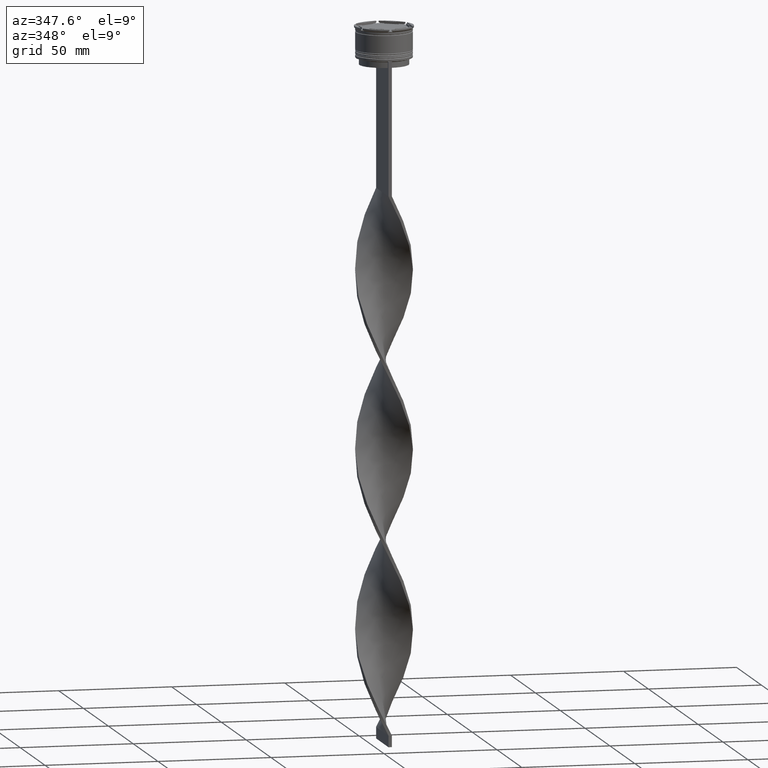
[diagram: clean part render]
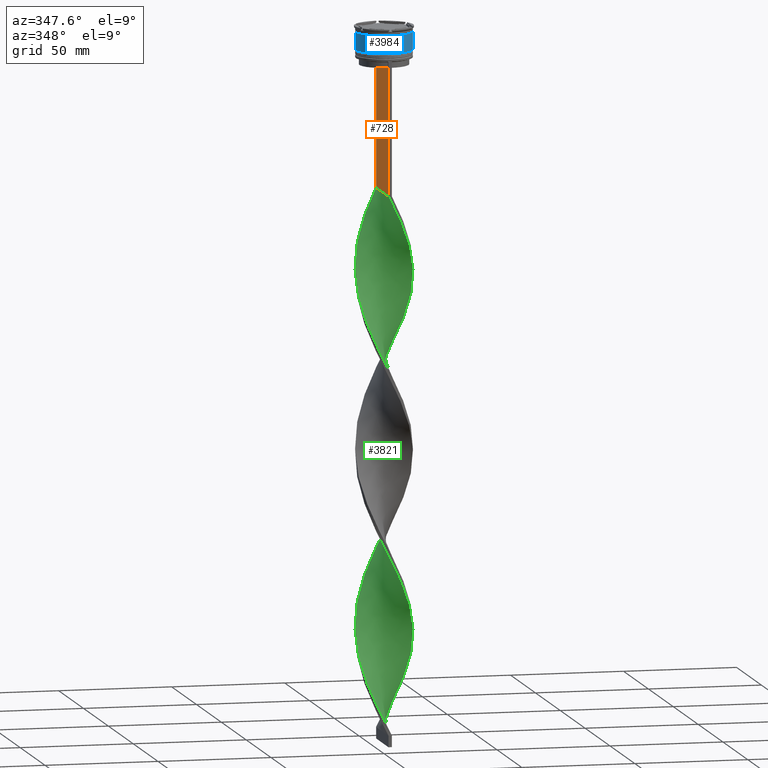
[diagram: same view with three faces highlighted in distinct colors, each labeled with its STEP entity id]
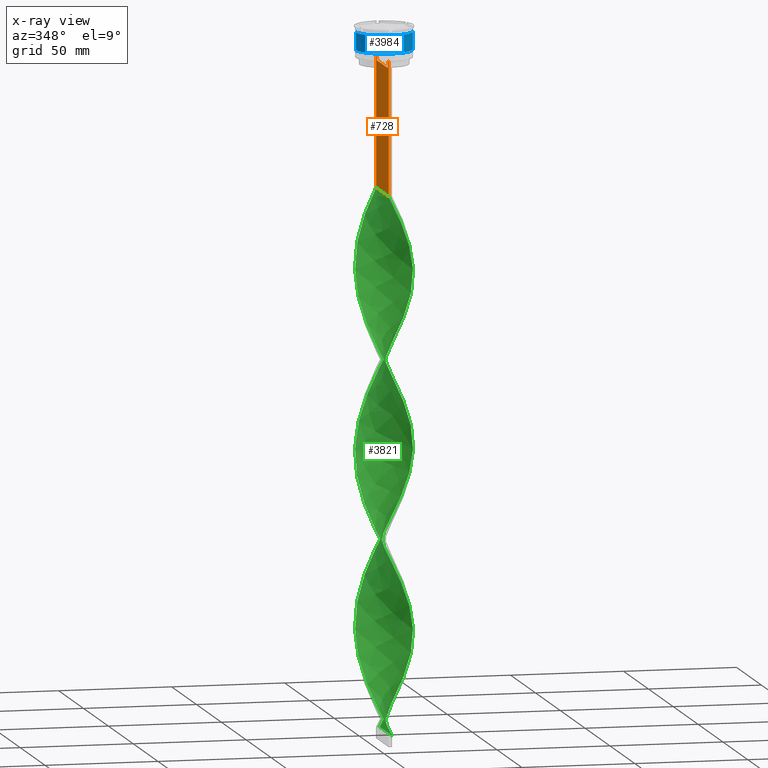
[diagram: x-ray of the same camera — body ghosted, the three highlighted faces saturated]
A machine part, auxiliary view with three faces highlighted in distinct colors.
The next image is the same camera in x-ray (body ghosted, the three faces saturated) — at least one of them is partly hidden behind the body in this view.
Their STEP definitions:

[orange] entity #728 — the highlighted planar face has unit normal (-1, 0, 0).
#81 = LINE ( 'NONE', #2489, #3733 ) ;
#149 = CARTESIAN_POINT ( 'NONE',  ( -0.7499999999999997780, -12.50000000000000000, -14.00000000000000178 ) ) ;
#167 = ORIENTED_EDGE ( 'NONE', *, *, #4258, .F. ) ;
#174 = EDGE_CURVE ( 'NONE', #4281, #1984, #3154, .T. ) ;
#175 = VERTEX_POINT ( 'NONE', #2391 ) ;
#258 = DIRECTION ( 'NONE',  ( 0.000000000000000000, 0.000000000000000000, 1.000000000000000000 ) ) ;
#315 = VECTOR ( 'NONE', #4228, 1000.000000000000000 ) ;
#353 = EDGE_CURVE ( 'NONE', #2982, #1569, #782, .T. ) ;
#377 = EDGE_CURVE ( 'NONE', #1583, #4281, #3212, .T. ) ;
#381 = CARTESIAN_POINT ( 'NONE',  ( -0.7499999999999997780, 12.50000000000000000, -14.00000000000000178 ) ) ;
#406 = VERTEX_POINT ( 'NONE', #1429 ) ;
#514 = CARTESIAN_POINT ( 'NONE',  ( -0.7499999999999997780, -12.50000000000000000, -73.00000000000001421 ) ) ;
#517 = VECTOR ( 'NONE', #3217, 1000.000000000000000 ) ;
#541 = EDGE_CURVE ( 'NONE', #3647, #3125, #1894, .T. ) ;
#646 = B_SPLINE_CURVE_WITH_KNOTS ( 'NONE', 3,
 ( #4332, #1259, #3992, #869 ),
 .UNSPECIFIED., .F., .F.,
 ( 4, 4 ),
 ( 0.05009718908159448147, 0.05081156920313960323 ),
 .UNSPECIFIED. ) ;
#683 = CARTESIAN_POINT ( 'NONE',  ( -0.7499999999999997780, 11.04122051153452055, -14.33334204648729582 ) ) ;
#697 = CARTESIAN_POINT ( 'NONE',  ( -0.7499999999999997780, -12.50000000000000000, 11.04495957273638673 ) ) ;
#728 = ADVANCED_FACE ( 'NONE', ( #4154 ), #3383, .T. ) ;
#749 = DIRECTION ( 'NONE',  ( 0.000000000000000000, 0.000000000000000000, -1.000000000000000000 ) ) ;
#766 = CARTESIAN_POINT ( 'NONE',  ( -0.7499999999999997780, -12.50000000000000000, -14.00000000000000178 ) ) ;
#782 = LINE ( 'NONE', #2520, #2556 ) ;
#869 = CARTESIAN_POINT ( 'NONE',  ( -0.7499999999999997780, -11.37530219378809093, -14.00000000000000178 ) ) ;
#953 = ORIENTED_EDGE ( 'NONE', *, *, #377, .F. ) ;
#1053 = CARTESIAN_POINT ( 'NONE',  ( -0.7499999999999997780, -10.87416663473574374, -14.50000000000000000 ) ) ;
#1124 = CARTESIAN_POINT ( 'NONE',  ( -0.7499999999999997780, -12.50000000000000000, 11.04495957273638673 ) ) ;
#1137 = EDGE_CURVE ( 'NONE', #1569, #175, #3885, .T. ) ;
#1255 = EDGE_CURVE ( 'NONE', #2982, #406, #2866, .T. ) ;
#1259 = CARTESIAN_POINT ( 'NONE',  ( -0.7499999999999997780, -11.04122051801870619, -14.33334204001847745 ) ) ;
#1304 = CARTESIAN_POINT ( 'NONE',  ( -0.7499999999999997780, 10.90000000000000213, -17.00000000000000000 ) ) ;
#1429 = CARTESIAN_POINT ( 'NONE',  ( -0.7499999999999997780, 12.50000000000000000, -73.00000000000001421 ) ) ;
#1438 = LINE ( 'NONE', #1124, #1748 ) ;
#1477 = VECTOR ( 'NONE', #3338, 1000.000000000000000 ) ;
#1491 = DIRECTION ( 'NONE',  ( 0.000000000000000000, 0.000000000000000000, -1.000000000000000000 ) ) ;
#1545 = EDGE_CURVE ( 'NONE', #3125, #2843, #3754, .T. ) ;
#1569 = VERTEX_POINT ( 'NONE', #4357 ) ;
#1578 = ORIENTED_EDGE ( 'NONE', *, *, #2251, .F. ) ;
#1583 = VERTEX_POINT ( 'NONE', #2351 ) ;
#1653 = ORIENTED_EDGE ( 'NONE', *, *, #1545, .F. ) ;
#1748 = VECTOR ( 'NONE', #749, 1000.000000000000000 ) ;
#1769 = VECTOR ( 'NONE', #1491, 1000.000000000000000 ) ;
#1807 = LINE ( 'NONE', #3184, #315 ) ;
#1816 = DIRECTION ( 'NONE',  ( 0.000000000000000000, -1.000000000000000000, 0.000000000000000000 ) ) ;
#1828 = EDGE_CURVE ( 'NONE', #3741, #3647, #646, .T. ) ;
#1829 = CARTESIAN_POINT ( 'NONE',  ( -0.7499999999999997780, 12.50000000000000000, 11.04495957273638673 ) ) ;
#1836 = VECTOR ( 'NONE', #2315, 1000.000000000000000 ) ;
#1894 = LINE ( 'NONE', #1943, #1836 ) ;
#1900 = EDGE_LOOP ( 'NONE', ( #2108, #3368, #2211, #4303, #2463, #167, #1653, #4354, #4329, #1578, #3386, #953 ) ) ;
#1943 = CARTESIAN_POINT ( 'NONE',  ( -0.7499999999999997780, -12.50000000000000000, -14.00000000000000178 ) ) ;
#1984 = VERTEX_POINT ( 'NONE', #2352 ) ;
#2084 = CARTESIAN_POINT ( 'NONE',  ( -0.7499999999999997780, 10.87416663473574374, -14.50000000000000000 ) ) ;
#2108 = ORIENTED_EDGE ( 'NONE', *, *, #4278, .F. ) ;
#2211 = ORIENTED_EDGE ( 'NONE', *, *, #353, .F. ) ;
#2249 = EDGE_CURVE ( 'NONE', #3836, #406, #81, .T. ) ;
#2251 = EDGE_CURVE ( 'NONE', #1984, #3741, #1807, .T. ) ;
#2315 = DIRECTION ( 'NONE',  ( 0.000000000000000000, -1.000000000000000000, 0.000000000000000000 ) ) ;
#2351 = CARTESIAN_POINT ( 'NONE',  ( -0.7499999999999997780, 10.87416663473574374, -14.50000000000000000 ) ) ;
#2352 = CARTESIAN_POINT ( 'NONE',  ( -0.7499999999999997780, -10.87416663473574019, -17.00000000000000000 ) ) ;
#2391 = CARTESIAN_POINT ( 'NONE',  ( -0.7499999999999997780, 11.37530219378809093, -14.00000000000000178 ) ) ;
#2396 = DIRECTION ( 'NONE',  ( -1.000000000000000000, 0.000000000000000000, 0.000000000000000000 ) ) ;
#2463 = ORIENTED_EDGE ( 'NONE', *, *, #2249, .F. ) ;
#2488 = CARTESIAN_POINT ( 'NONE',  ( -0.7499999999999997780, 11.37530219378809093, -14.00000000000000178 ) ) ;
#2489 = CARTESIAN_POINT ( 'NONE',  ( -0.7499999999999997780, -12.50000000000000000, -73.00000000000001421 ) ) ;
#2502 = CARTESIAN_POINT ( 'NONE',  ( -0.7499999999999997780, 10.87416663473574374, 0.000000000000000000 ) ) ;
#2520 = CARTESIAN_POINT ( 'NONE',  ( -0.7499999999999997780, -12.50000000000000000, -14.00000000000000178 ) ) ;
#2529 = CARTESIAN_POINT ( 'NONE',  ( -0.7499999999999997780, 11.20826531587977648, -14.16667499681701514 ) ) ;
#2556 = VECTOR ( 'NONE', #1816, 1000.000000000000000 ) ;
#2843 = VERTEX_POINT ( 'NONE', #149 ) ;
#2864 = CARTESIAN_POINT ( 'NONE',  ( -0.7499999999999997780, 10.87416663473574019, -17.00000000000000000 ) ) ;
#2866 = LINE ( 'NONE', #1829, #4159 ) ;
#2982 = VERTEX_POINT ( 'NONE', #381 ) ;
#3125 = VERTEX_POINT ( 'NONE', #3995 ) ;
#3154 = LINE ( 'NONE', #1304, #4076 ) ;
#3184 = CARTESIAN_POINT ( 'NONE',  ( -0.7499999999999997780, -10.87416663473574374, 0.000000000000000000 ) ) ;
#3212 = LINE ( 'NONE', #2502, #1769 ) ;
#3217 = DIRECTION ( 'NONE',  ( 0.000000000000000000, -1.000000000000000000, 0.000000000000000000 ) ) ;
#3338 = DIRECTION ( 'NONE',  ( 0.000000000000000000, -1.000000000000000000, 0.000000000000000000 ) ) ;
#3352 = AXIS2_PLACEMENT_3D ( 'NONE', #697, #2396, #258 ) ;
#3368 = ORIENTED_EDGE ( 'NONE', *, *, #1137, .F. ) ;
#3383 = PLANE ( 'NONE',  #3352 ) ;
#3386 = ORIENTED_EDGE ( 'NONE', *, *, #174, .F. ) ;
#3404 = B_SPLINE_CURVE_WITH_KNOTS ( 'NONE', 3,
 ( #2488, #2529, #683, #2084 ),
 .UNSPECIFIED., .F., .F.,
 ( 4, 4 ),
 ( 0.01936090553552769281, 0.02006881572333104116 ),
 .UNSPECIFIED. ) ;
#3647 = VERTEX_POINT ( 'NONE', #4219 ) ;
#3661 = CARTESIAN_POINT ( 'NONE',  ( -0.7499999999999997780, -12.50000000000000000, -14.00000000000000178 ) ) ;
#3733 = VECTOR ( 'NONE', #3871, 1000.000000000000000 ) ;
#3741 = VERTEX_POINT ( 'NONE', #1053 ) ;
#3754 = LINE ( 'NONE', #3661, #1477 ) ;
#3836 = VERTEX_POINT ( 'NONE', #514 ) ;
#3871 = DIRECTION ( 'NONE',  ( 0.000000000000000000, 1.000000000000000000, 0.000000000000000000 ) ) ;
#3885 = LINE ( 'NONE', #766, #517 ) ;
#3894 = DIRECTION ( 'NONE',  ( 0.000000000000000000, 0.000000000000000000, -1.000000000000000000 ) ) ;
#3992 = CARTESIAN_POINT ( 'NONE',  ( -0.7499999999999997780, -11.20826532207830439, -14.16667499063191471 ) ) ;
#3995 = CARTESIAN_POINT ( 'NONE',  ( -0.7499999999999997780, -12.37729776647553059, -14.00000000000000178 ) ) ;
#4076 = VECTOR ( 'NONE', #4105, 1000.000000000000000 ) ;
#4105 = DIRECTION ( 'NONE',  ( 0.000000000000000000, -1.000000000000000000, 0.000000000000000000 ) ) ;
#4154 = FACE_OUTER_BOUND ( 'NONE', #1900, .T. ) ;
#4159 = VECTOR ( 'NONE', #3894, 1000.000000000000000 ) ;
#4219 = CARTESIAN_POINT ( 'NONE',  ( -0.7499999999999997780, -11.37530219378809093, -14.00000000000000178 ) ) ;
#4228 = DIRECTION ( 'NONE',  ( -0.000000000000000000, -0.000000000000000000, 1.000000000000000000 ) ) ;
#4258 = EDGE_CURVE ( 'NONE', #2843, #3836, #1438, .T. ) ;
#4278 = EDGE_CURVE ( 'NONE', #175, #1583, #3404, .T. ) ;
#4281 = VERTEX_POINT ( 'NONE', #2864 ) ;
#4303 = ORIENTED_EDGE ( 'NONE', *, *, #1255, .T. ) ;
#4329 = ORIENTED_EDGE ( 'NONE', *, *, #1828, .F. ) ;
#4332 = CARTESIAN_POINT ( 'NONE',  ( -0.7499999999999997780, -10.87416663473574374, -14.50000000000000000 ) ) ;
#4354 = ORIENTED_EDGE ( 'NONE', *, *, #541, .F. ) ;
#4357 = CARTESIAN_POINT ( 'NONE',  ( -0.7499999999999997780, 12.37729776647553059, -14.00000000000000178 ) ) ;

[blue] entity #3984 — the highlighted cylindrical surface (edge-blend (fillet) strip) has radius 12.5 mm, axis along (-0, -0, 1).
#78 = DIRECTION ( 'NONE',  ( -0.000000000000000000, -0.000000000000000000, 1.000000000000000000 ) ) ;
#223 = CIRCLE ( 'NONE', #1240, 12.49999999999999822 ) ;
#288 = CYLINDRICAL_SURFACE ( 'NONE', #3981, 12.50000000000000000 ) ;
#622 = ORIENTED_EDGE ( 'NONE', *, *, #1282, .F. ) ;
#680 = EDGE_LOOP ( 'NONE', ( #2368, #734, #3967, #622 ) ) ;
#734 = ORIENTED_EDGE ( 'NONE', *, *, #3373, .T. ) ;
#788 = DIRECTION ( 'NONE',  ( 1.000000000000000000, 0.000000000000000000, 0.000000000000000000 ) ) ;
#846 = CARTESIAN_POINT ( 'NONE',  ( 0.000000000000000000, 0.000000000000000000, -10.50000000000000178 ) ) ;
#981 = CIRCLE ( 'NONE', #3748, 12.50000000000000178 ) ;
#1168 = CARTESIAN_POINT ( 'NONE',  ( 0.000000000000000000, 0.000000000000000000, -2.699999999999999289 ) ) ;
#1240 = AXIS2_PLACEMENT_3D ( 'NONE', #1168, #4270, #1890 ) ;
#1282 = EDGE_CURVE ( 'NONE', #3462, #4224, #223, .T. ) ;
#1660 = LINE ( 'NONE', #3039, #2928 ) ;
#1665 = FACE_OUTER_BOUND ( 'NONE', #680, .T. ) ;
#1689 = DIRECTION ( 'NONE',  ( -0.000000000000000000, -0.000000000000000000, 1.000000000000000000 ) ) ;
#1813 = LINE ( 'NONE', #2307, #2433 ) ;
#1890 = DIRECTION ( 'NONE',  ( 1.000000000000000000, 0.000000000000000000, 0.000000000000000000 ) ) ;
#1997 = VERTEX_POINT ( 'NONE', #4066 ) ;
#2307 = CARTESIAN_POINT ( 'NONE',  ( -12.50000000000000000, 1.530808498934191521E-15, 0.000000000000000000 ) ) ;
#2327 = CARTESIAN_POINT ( 'NONE',  ( 0.000000000000000000, 0.000000000000000000, 0.000000000000000000 ) ) ;
#2368 = ORIENTED_EDGE ( 'NONE', *, *, #3834, .F. ) ;
#2433 = VECTOR ( 'NONE', #3631, 1000.000000000000000 ) ;
#2465 = CARTESIAN_POINT ( 'NONE',  ( 12.49999999999999822, 0.000000000000000000, -2.699999999999999289 ) ) ;
#2901 = EDGE_CURVE ( 'NONE', #1997, #4224, #1660, .T. ) ;
#2928 = VECTOR ( 'NONE', #4421, 1000.000000000000000 ) ;
#3039 = CARTESIAN_POINT ( 'NONE',  ( 12.50000000000000000, 0.000000000000000000, 0.000000000000000000 ) ) ;
#3061 = CARTESIAN_POINT ( 'NONE',  ( -12.49999999999999822, 1.530808498934191324E-15, -2.699999999999999289 ) ) ;
#3373 = EDGE_CURVE ( 'NONE', #4456, #1997, #981, .T. ) ;
#3462 = VERTEX_POINT ( 'NONE', #3061 ) ;
#3631 = DIRECTION ( 'NONE',  ( -0.000000000000000000, -0.000000000000000000, 1.000000000000000000 ) ) ;
#3748 = AXIS2_PLACEMENT_3D ( 'NONE', #846, #78, #788 ) ;
#3777 = DIRECTION ( 'NONE',  ( 1.000000000000000000, 0.000000000000000000, 0.000000000000000000 ) ) ;
#3834 = EDGE_CURVE ( 'NONE', #4456, #3462, #1813, .T. ) ;
#3967 = ORIENTED_EDGE ( 'NONE', *, *, #2901, .T. ) ;
#3981 = AXIS2_PLACEMENT_3D ( 'NONE', #2327, #1689, #3777 ) ;
#3984 = ADVANCED_FACE ( 'NONE', ( #1665 ), #288, .T. ) ;
#4066 = CARTESIAN_POINT ( 'NONE',  ( 12.50000000000000178, 0.000000000000000000, -10.50000000000000178 ) ) ;
#4224 = VERTEX_POINT ( 'NONE', #2465 ) ;
#4270 = DIRECTION ( 'NONE',  ( -0.000000000000000000, -0.000000000000000000, 1.000000000000000000 ) ) ;
#4283 = CARTESIAN_POINT ( 'NONE',  ( -12.50000000000000355, 1.530808498934191916E-15, -10.50000000000000178 ) ) ;
#4421 = DIRECTION ( 'NONE',  ( -0.000000000000000000, -0.000000000000000000, 1.000000000000000000 ) ) ;
#4456 = VERTEX_POINT ( 'NONE', #4283 ) ;

[green] entity #3821 — the highlighted face is a freeform B-spline surface patch.
#4 = CARTESIAN_POINT ( 'NONE',  ( 10.79708867754994017, 6.343136139885609204, -202.8000000000000114 ) ) ;
#30 = CARTESIAN_POINT ( 'NONE',  ( 12.50000000000000000, 0.7499999999999975575, -191.0000000000000000 ) ) ;
#46 = CARTESIAN_POINT ( 'NONE',  ( 5.909970402080498175, -11.08404438769758293, -244.0999999999999943 ) ) ;
#50 = CARTESIAN_POINT ( 'NONE',  ( -1.733771335307730643, 12.44097371988153711, -232.3000000000000114 ) ) ;
#56 = CARTESIAN_POINT ( 'NONE',  ( -3.149420042465479241, -12.11996919947063134, -143.7999999999999829 ) ) ;
#65 = CARTESIAN_POINT ( 'NONE',  ( 12.22877840865904986, -2.696197068449239787, -265.7333333333333485 ) ) ;
#69 = CARTESIAN_POINT ( 'NONE',  ( -5.006626353603061297, -11.47807442715925852, -297.2000000000000455 ) ) ;
#73 = CARTESIAN_POINT ( 'NONE',  ( 12.46343010621939484, 1.214664557556532021, -116.2666666666666657 ) ) ;
#76 = CARTESIAN_POINT ( 'NONE',  ( 7.954078399437124247, -9.671873490467490342, -167.4000000000000057 ) ) ;
#77 = ORIENTED_EDGE ( 'NONE', *, *, #3105, .T. ) ;
#81 = LINE ( 'NONE', #2489, #3733 ) ;
#93 = CARTESIAN_POINT ( 'NONE',  ( 6.740552907874703514, -10.55355136890619860, -88.73333333333334849 ) ) ;
#96 = CARTESIAN_POINT ( 'NONE',  ( 11.87210446662093410, -4.103282305125629748, -181.1666666666666856 ) ) ;
#102 = CARTESIAN_POINT ( 'NONE',  ( -12.50000000000000000, -0.7499999999999990008, -269.6666666666666856 ) ) ;
#109 = CARTESIAN_POINT ( 'NONE',  ( 12.22877840865904986, -2.696197068449239787, -108.3999999999999915 ) ) ;
#113 = CARTESIAN_POINT ( 'NONE',  ( 5.493386832225667149, -11.29630431837985860, -161.5000000000000000 ) ) ;
#122 = CARTESIAN_POINT ( 'NONE',  ( 7.954078399437126023, 9.671873490467488566, -293.2666666666666515 ) ) ;
#129 = CARTESIAN_POINT ( 'NONE',  ( 4.103282305125622642, -11.87210446662093588, -82.83333333333335702 ) ) ;
#130 = CARTESIAN_POINT ( 'NONE',  ( 12.44097371988153711, -1.733771335307731531, -110.3666666666666742 ) ) ;
#134 = CARTESIAN_POINT ( 'NONE',  ( 10.79708867754994017, 6.343136139885609204, -202.8000000000000114 ) ) ;
#146 = CARTESIAN_POINT ( 'NONE',  ( -7.192885447545553923, 10.29787303672002352, -244.0999999999999943 ) ) ;
#147 = CARTESIAN_POINT ( 'NONE',  ( -12.46343010621939484, 1.214664557556533353, -265.7333333333333485 ) ) ;
#148 = CARTESIAN_POINT ( 'NONE',  ( 9.369164850721755755, 8.308504678941933008, -289.3333333333333144 ) ) ;
#157 = CARTESIAN_POINT ( 'NONE',  ( -3.149420042465476133, 12.11996919947063311, -159.5333333333333314 ) ) ;
#168 = CARTESIAN_POINT ( 'NONE',  ( -2.195557779805336729, -12.36783393232032502, -303.0999999999999659 ) ) ;
#169 = CARTESIAN_POINT ( 'NONE',  ( -11.87210446662093588, 4.103282305125623530, -259.8333333333334281 ) ) ;
#178 = CARTESIAN_POINT ( 'NONE',  ( 2.696197068449240231, 12.22877840865904808, -305.0666666666666629 ) ) ;
#190 = CARTESIAN_POINT ( 'NONE',  ( -11.08404438769758116, 5.909970402080499063, -255.9000000000000909 ) ) ;
#201 = CARTESIAN_POINT ( 'NONE',  ( -7.192885447545553035, -10.29787303672002530, -216.5666666666666629 ) ) ;
#202 = CARTESIAN_POINT ( 'NONE',  ( 9.369164850721755755, 8.308504678941933008, -132.0000000000000000 ) ) ;
#224 = CARTESIAN_POINT ( 'NONE',  ( 3.658622801590749596, 12.01658309743656083, -303.0999999999999659 ) ) ;
#251 = CARTESIAN_POINT ( 'NONE',  ( 12.01658309743656083, -3.658622801590749596, -263.7666666666667652 ) ) ;
#252 = CARTESIAN_POINT ( 'NONE',  ( -11.08404438769758649, -5.909970402080492846, -204.7666666666666799 ) ) ;
#275 = CARTESIAN_POINT ( 'NONE',  ( 12.50000000000000000, -0.7500000000000005551, -269.6666666666666856 ) ) ;
#276 = CARTESIAN_POINT ( 'NONE',  ( 6.343136139885611868, 10.79708867754993840, -139.8666666666666742 ) ) ;
#300 = CARTESIAN_POINT ( 'NONE',  ( 10.55355136890619683, -6.740552907874705291, -175.2666666666666799 ) ) ;
#302 = CARTESIAN_POINT ( 'NONE',  ( -5.909970402080496399, 11.08404438769758293, -165.4333333333333371 ) ) ;
#327 = CARTESIAN_POINT ( 'NONE',  ( 4.576004816908206152, -11.65644370790820972, -159.5333333333333314 ) ) ;
#328 = CARTESIAN_POINT ( 'NONE',  ( -11.87210446662093410, -4.103282305125625307, -200.8333333333333428 ) ) ;
#350 = CARTESIAN_POINT ( 'NONE',  ( 11.29630431837985505, 5.493386832225671590, -200.8333333333333428 ) ) ;
#370 = CARTESIAN_POINT ( 'NONE',  ( 12.36783393232032680, -2.195557779805332288, -185.0999999999999659 ) ) ;
#396 = CARTESIAN_POINT ( 'NONE',  ( -6.740552907874705291, -10.55355136890619683, -135.9333333333333371 ) ) ;
#401 = CARTESIAN_POINT ( 'NONE',  ( 2.195557779805334508, -12.36783393232032502, -78.90000000000003411 ) ) ;
#404 = CARTESIAN_POINT ( 'NONE',  ( -12.01658309743656261, -3.658622801590747819, -118.2333333333333485 ) ) ;
#406 = VERTEX_POINT ( 'NONE', #1429 ) ;
#412 = CARTESIAN_POINT ( 'NONE',  ( 11.65644370790820794, -4.576004816908208817, -261.7999999999999545 ) ) ;
#419 = CARTESIAN_POINT ( 'NONE',  ( 5.909970402080497287, -11.08404438769758293, -86.76666666666666572 ) ) ;
#422 = CARTESIAN_POINT ( 'NONE',  ( 9.369164850721753979, -8.308504678941934785, -171.3333333333333428 ) ) ;
#438 = CARTESIAN_POINT ( 'NONE',  ( -11.08404438769758649, -5.909970402080492846, -204.7666666666666799 ) ) ;
#441 = CARTESIAN_POINT ( 'NONE',  ( 11.47807442715925852, -5.006626353603061297, -179.1999999999999886 ) ) ;
#449 = CARTESIAN_POINT ( 'NONE',  ( -10.55355136890619860, 6.740552907874703514, -253.9333333333333371 ) ) ;
#461 = CARTESIAN_POINT ( 'NONE',  ( 10.02305835011481427, 7.571135413668909742, -130.0333333333333314 ) ) ;
#464 = CARTESIAN_POINT ( 'NONE',  ( -3.658622801590747819, 12.01658309743656083, -78.90000000000001990 ) ) ;
#480 = CARTESIAN_POINT ( 'NONE',  ( -10.29787303672002707, 7.192885447545552147, -177.2333333333333485 ) ) ;
#485 = CARTESIAN_POINT ( 'NONE',  ( -12.50000000000000000, -0.7499999999999990008, -112.3333333333333428 ) ) ;
#492 = CARTESIAN_POINT ( 'NONE',  ( -6.343136139885610092, 10.79708867754994017, -242.1333333333333258 ) ) ;
#493 = CARTESIAN_POINT ( 'NONE',  ( -6.740552907874705291, -10.55355136890619683, -293.2666666666666515 ) ) ;
#502 = CARTESIAN_POINT ( 'NONE',  ( 8.715271351328700788, 9.045873944214958939, -133.9666666666666686 ) ) ;
#503 = CARTESIAN_POINT ( 'NONE',  ( 0.2337713353077308376, -12.55902628011846645, -74.96666666666668277 ) ) ;
#513 = CARTESIAN_POINT ( 'NONE',  ( -12.22877840865904986, -2.696197068449238454, -273.5999999999999659 ) ) ;
#514 = CARTESIAN_POINT ( 'NONE',  ( -0.7499999999999997780, -12.50000000000000000, -73.00000000000001421 ) ) ;
#525 = CARTESIAN_POINT ( 'NONE',  ( 12.46343010621939484, 1.214664557556532021, -273.5999999999999659 ) ) ;
#538 = CARTESIAN_POINT ( 'NONE',  ( -6.740552907874705291, -10.55355136890619683, -293.2666666666666515 ) ) ;
#547 = CARTESIAN_POINT ( 'NONE',  ( 7.192885447545556588, 10.29787303672002352, -295.2333333333332916 ) ) ;
#548 = CARTESIAN_POINT ( 'NONE',  ( 12.36783393232032680, 2.195557779805334508, -118.2333333333333485 ) ) ;
#570 = CARTESIAN_POINT ( 'NONE',  ( 11.47807442715926030, 5.006626353603059520, -281.4666666666666401 ) ) ;
#571 = CARTESIAN_POINT ( 'NONE',  ( 4.103282305125622642, -11.87210446662093588, -82.83333333333335702 ) ) ;
#593 = CARTESIAN_POINT ( 'NONE',  ( -6.343136139885610092, 10.79708867754994017, -84.80000000000001137 ) ) ;
#594 = CARTESIAN_POINT ( 'NONE',  ( -12.50000000000000000, 0.7500000000000021094, -191.0000000000000000 ) ) ;
#619 = CARTESIAN_POINT ( 'NONE',  ( -8.715271351328704341, -9.045873944214953610, -212.6333333333333826 ) ) ;
#620 = CARTESIAN_POINT ( 'NONE',  ( 0.2337713353077308376, -12.55902628011846645, -232.3000000000000398 ) ) ;
#643 = CARTESIAN_POINT ( 'NONE',  ( -8.308504678941934785, -9.369164850721753979, -132.0000000000000000 ) ) ;
#644 = CARTESIAN_POINT ( 'NONE',  ( -4.103282305125620866, 11.87210446662093766, -161.5000000000000000 ) ) ;
#667 = CARTESIAN_POINT ( 'NONE',  ( -12.50000000000000000, -0.7499999999999990008, -112.3333333333333428 ) ) ;
#668 = CARTESIAN_POINT ( 'NONE',  ( -7.571135413668910630, 10.02305835011481605, -169.3666666666667027 ) ) ;
#692 = CARTESIAN_POINT ( 'NONE',  ( 12.01658309743656439, 3.658622801590740714, -196.9000000000000057 ) ) ;
#712 = CARTESIAN_POINT ( 'NONE',  ( -12.46343010621939484, 1.214664557556533353, -108.3999999999999915 ) ) ;
#733 = CARTESIAN_POINT ( 'NONE',  ( -2.195557779805336285, -12.36783393232032502, -145.7666666666666515 ) ) ;
#745 = CARTESIAN_POINT ( 'NONE',  ( -11.87210446662093588, 4.103282305125623530, -102.5000000000000142 ) ) ;
#755 = CARTESIAN_POINT ( 'NONE',  ( -11.65644370790820794, 4.576004816908209705, -183.1333333333333258 ) ) ;
#760 = CARTESIAN_POINT ( 'NONE',  ( 2.195557779805333176, 12.36783393232032680, -224.4333333333333655 ) ) ;
#765 = CARTESIAN_POINT ( 'NONE',  ( 8.308504678941934785, -9.369164850721755755, -92.66666666666667140 ) ) ;
#768 = CARTESIAN_POINT ( 'NONE',  ( -12.46343010621939484, 1.214664557556533353, -108.3999999999999915 ) ) ;
#783 = CARTESIAN_POINT ( 'NONE',  ( -12.11996919947063311, -3.149420042465475689, -198.8666666666666742 ) ) ;
#786 = CARTESIAN_POINT ( 'NONE',  ( 4.576004816908206152, -11.65644370790820972, -159.5333333333333314 ) ) ;
#791 = CARTESIAN_POINT ( 'NONE',  ( -0.7499999999999997780, 12.50000000000000000, -230.3333333333333428 ) ) ;
#792 = CARTESIAN_POINT ( 'NONE',  ( 0.7500000000000013323, 12.50000000000000000, -309.0000000000000000 ) ) ;
#798 = CARTESIAN_POINT ( 'NONE',  ( 3.658622801590749596, 12.01658309743656083, -145.7666666666666515 ) ) ;
#801 = CARTESIAN_POINT ( 'NONE',  ( -7.571135413668912406, -10.02305835011481605, -133.9666666666666686 ) ) ;
#819 = CARTESIAN_POINT ( 'NONE',  ( -5.909970402080495511, 11.08404438769758293, -165.4333333333333655 ) ) ;
#820 = CARTESIAN_POINT ( 'NONE',  ( 12.46343010621939484, 1.214664557556532021, -116.2666666666666657 ) ) ;
#822 = CARTESIAN_POINT ( 'NONE',  ( 11.08404438769758471, -5.909970402080495511, -177.2333333333333485 ) ) ;
#829 = CARTESIAN_POINT ( 'NONE',  ( -8.308504678941934785, -9.369164850721753979, -289.3333333333333144 ) ) ;
#830 = CARTESIAN_POINT ( 'NONE',  ( 1.214664557556535796, 12.46343010621939307, -226.3999999999999773 ) ) ;
#841 = CARTESIAN_POINT ( 'NONE',  ( -9.045873944214955387, 8.715271351328704341, -173.3000000000000114 ) ) ;
#842 = CARTESIAN_POINT ( 'NONE',  ( 11.29630431837985682, -5.493386832225669814, -102.5000000000000142 ) ) ;
#851 = CARTESIAN_POINT ( 'NONE',  ( -5.909970402080499952, -11.08404438769758116, -295.2333333333333485 ) ) ;
#852 = CARTESIAN_POINT ( 'NONE',  ( -2.696197068449239342, 12.22877840865904986, -234.2666666666666515 ) ) ;
#861 = CARTESIAN_POINT ( 'NONE',  ( 0.7500000000000013323, 12.50000000000000000, -309.0000000000000000 ) ) ;
#878 =( BOUNDED_CURVE ( )  B_SPLINE_CURVE ( 2, ( #2462, #2124, #1456, #464, #3921, #2507, #4246, #1120, #2187, #3563, #1841, #1434, #3865, #2149, #1138, #745, #2525, #1821, #768, #3528, #485, #3887, #2839, #404, #3179, #3944, #1803, #1157, #1861, #2816, #2896, #801, #2169, #4280, #4201, #1102, #56, #4222, #3242, #2232, #3905, #3200, #1078, #2861, #786, #113, #2485, #3220, #76, #3546, #422, #1475, #2561, #822, #441, #96, #3585, #3604, #1878, #1496, #3258, #2876, #4263, #2544, #2210, #1513, #134, #1535, #2917, #4304, #1182, #2585, #1164, #4269, #1546, #2238, #1867, #3630, #2902, #1520, #791, #3952, #3610, #3659, #2569, #2283, #492, #146, #1888, #3314, #3266, #2194, #449, #2926, #3248, #4313, #1847, #1912, #2532, #3592, #102, #4335, #513, #3292, #3226, #2949, #1147, #3973, #2219, #1191, #829, #2592, #538, #851, #2548, #2261, #3571, #168, #1571, #1213, #2613 ),
 .UNSPECIFIED., .F., .T. ) 
 B_SPLINE_CURVE_WITH_KNOTS ( ( 3, 2, 2, 2, 2, 2, 2, 2, 2, 2, 2, 2, 2, 2, 2, 2, 2, 2, 2, 2, 2, 2, 2, 2, 2, 2, 2, 2, 2, 2, 2, 2, 2, 2, 2, 2, 2, 2, 2, 2, 2, 2, 2, 2, 2, 2, 2, 2, 2, 2, 2, 2, 2, 2, 2, 2, 2, 2, 2, 2, 3 ),
 ( 0.000000000000000000, 0.01250000000000000243, 0.02500000000000000486, 0.03749999999999999861, 0.05000000000000000971, 0.06250000000000000000, 0.07499999999999999722, 0.08749999999999998057, 0.1000000000000000194, 0.1125000000000000028, 0.1250000000000000000, 0.1375000000000000111, 0.1499999999999999944, 0.1625000000000000056, 0.1749999999999999611, 0.1875000000000000000, 0.2000000000000000389, 0.2124999999999999944, 0.2250000000000000056, 0.2374999999999999611, 0.2500000000000000000, 0.2625000000000000111, 0.2750000000000000222, 0.2874999999999999778, 0.2999999999999999889, 0.3125000000000000000, 0.3250000000000000111, 0.3375000000000000777, 0.3499999999999999223, 0.3624999999999999889, 0.3750000000000000000, 0.3875000000000000111, 0.4000000000000000777, 0.4124999999999999223, 0.4249999999999999889, 0.4375000000000000000, 0.4500000000000000111, 0.4625000000000000777, 0.4749999999999999223, 0.4874999999999999889, 0.5000000000000000000, 0.5124999999999999556, 0.5250000000000000222, 0.5374999999999999778, 0.5500000000000000444, 0.5625000000000000000, 0.5749999999999999556, 0.5875000000000000222, 0.5999999999999999778, 0.6125000000000000444, 0.6250000000000000000, 0.6374999999999999556, 0.6500000000000000222, 0.6624999999999999778, 0.6750000000000001554, 0.6875000000000000000, 0.6999999999999998446, 0.7125000000000000222, 0.7249999999999999778, 0.7375000000000001554, 0.7500000000000000000 ),
 .UNSPECIFIED. ) 
 CURVE ( )  GEOMETRIC_REPRESENTATION_ITEM ( )  RATIONAL_B_SPLINE_CURVE ( ( 1.000000000000000000, 0.9969173337331279638, 1.000000000000000000, 0.9969173337331279638, 1.000000000000000000, 0.9969173337331279638, 1.000000000000000000, 0.9969173337331279638, 1.000000000000000000, 0.9969173337331279638, 1.000000000000000000, 0.9969173337331279638, 1.000000000000000000, 0.9969173337331279638, 1.000000000000000000, 0.9969173337331279638, 1.000000000000000000, 0.9969173337331279638, 1.000000000000000000, 0.9969173337331279638, 1.000000000000000000, 0.9969173337331279638, 1.000000000000000000, 0.9969173337331279638, 1.000000000000000000, 0.9969173337331279638, 1.000000000000000000, 0.9969173337331279638, 1.000000000000000000, 0.9969173337331279638, 1.000000000000000000, 0.9969173337331279638, 1.000000000000000000, 0.9969173337331279638, 1.000000000000000000, 0.9969173337331279638, 1.000000000000000000, 0.9969173337331279638, 1.000000000000000000, 0.9969173337331279638, 1.000000000000000000, 0.9969173337331279638, 1.000000000000000000, 0.9969173337331279638, 1.000000000000000000, 0.9969173337331279638, 1.000000000000000000, 0.9969173337331279638, 1.000000000000000000, 0.9969173337331279638, 1.000000000000000000, 0.9969173337331279638, 1.000000000000000000, 0.9969173337331279638, 1.000000000000000000, 0.9969173337331279638, 1.000000000000000000, 0.9969173337331279638, 1.000000000000000000, 0.9969173337331279638, 1.000000000000000000, 0.9969173337331279638, 1.000000000000000000, 0.9969173337331279638, 1.000000000000000000, 0.9969173337331279638, 1.000000000000000000, 0.9969173337331279638, 1.000000000000000000, 0.9969173337331279638, 1.000000000000000000, 0.9969173337331279638, 1.000000000000000000, 0.9969173337331279638, 1.000000000000000000, 0.9969173337331279638, 1.000000000000000000, 0.9969173337331279638, 1.000000000000000000, 0.9969173337331279638, 1.000000000000000000, 0.9969173337331279638, 1.000000000000000000, 0.9969173337331279638, 1.000000000000000000, 0.9969173337331279638, 1.000000000000000000, 0.9969173337331279638, 1.000000000000000000, 0.9969173337331279638, 1.000000000000000000, 0.9969173337331279638, 1.000000000000000000, 0.9969173337331279638, 1.000000000000000000, 0.9969173337331279638, 1.000000000000000000, 0.9969173337331279638, 1.000000000000000000, 0.9969173337331279638, 1.000000000000000000, 0.9969173337331279638, 1.000000000000000000, 0.9969173337331279638, 1.000000000000000000, 0.9969173337331279638, 1.000000000000000000, 0.9969173337331279638, 1.000000000000000000, 0.9969173337331279638, 1.000000000000000000, 0.9969173337331279638, 1.000000000000000000, 0.9969173337331279638, 1.000000000000000000, 0.9969173337331279638, 1.000000000000000000, 0.9969173337331279638, 1.000000000000000000, 0.9969173337331279638, 1.000000000000000000 ) ) 
 REPRESENTATION_ITEM ( '' )  );
#885 = CARTESIAN_POINT ( 'NONE',  ( 10.79708867754993840, -6.343136139885610980, -257.8666666666666742 ) ) ;
#899 = CARTESIAN_POINT ( 'NONE',  ( -5.909970402080499063, -11.08404438769758116, -295.2333333333332916 ) ) ;
#908 = CARTESIAN_POINT ( 'NONE',  ( 12.44097371988153711, -1.733771335307731531, -267.6999999999999318 ) ) ;
#932 = CARTESIAN_POINT ( 'NONE',  ( -3.658622801590746043, -12.01658309743656261, -224.4333333333333655 ) ) ;
#933 = CARTESIAN_POINT ( 'NONE',  ( -12.44097371988153533, 1.733771335307738415, -189.0333333333333314 ) ) ;
#957 = CARTESIAN_POINT ( 'NONE',  ( 9.671873490467490342, -7.954078399437124247, -253.9333333333333371 ) ) ;
#958 = CARTESIAN_POINT ( 'NONE',  ( -12.36783393232032857, -2.195557779805327403, -196.9000000000000057 ) ) ;
#982 = CARTESIAN_POINT ( 'NONE',  ( -12.22877840865904986, -2.696197068449238454, -116.2666666666666657 ) ) ;
#983 = CARTESIAN_POINT ( 'NONE',  ( 3.658622801590749152, 12.01658309743656083, -145.7666666666666515 ) ) ;
#1002 = CARTESIAN_POINT ( 'NONE',  ( -11.87210446662093588, 4.103282305125623530, -102.5000000000000000 ) ) ;
#1003 = CARTESIAN_POINT ( 'NONE',  ( 2.195557779805334953, -12.36783393232032502, -236.2333333333333485 ) ) ;
#1024 = CARTESIAN_POINT ( 'NONE',  ( 12.44097371988153711, 1.733771335307733974, -192.9666666666666970 ) ) ;
#1048 = CARTESIAN_POINT ( 'NONE',  ( 9.045873944214957163, 8.715271351328700788, -208.7000000000000171 ) ) ;
#1072 = CARTESIAN_POINT ( 'NONE',  ( 5.909970402080495511, 11.08404438769758293, -216.5666666666666629 ) ) ;
#1075 = CARTESIAN_POINT ( 'NONE',  ( -0.7499999999999997780, -12.50000000000000000, -73.00000000000001421 ) ) ;
#1078 = CARTESIAN_POINT ( 'NONE',  ( 2.696197068449237566, -12.22877840865904986, -155.6000000000000227 ) ) ;
#1085 = CARTESIAN_POINT ( 'NONE',  ( 9.671873490467490342, -7.954078399437124247, -253.9333333333333371 ) ) ;
#1090 = CARTESIAN_POINT ( 'NONE',  ( -9.671873490467490342, -7.954078399437124247, -285.3999999999999773 ) ) ;
#1102 = CARTESIAN_POINT ( 'NONE',  ( -4.103282305125623530, -11.87210446662093588, -141.8333333333333428 ) ) ;
#1116 = CARTESIAN_POINT ( 'NONE',  ( 12.01658309743656083, -3.658622801590749596, -106.4333333333333513 ) ) ;
#1120 = CARTESIAN_POINT ( 'NONE',  ( -7.192885447545553923, 10.29787303672002352, -86.76666666666666572 ) ) ;
#1134 = CARTESIAN_POINT ( 'NONE',  ( 4.576004816908209705, 11.65644370790820794, -143.7999999999999829 ) ) ;
#1138 = CARTESIAN_POINT ( 'NONE',  ( -11.47807442715925852, 5.006626353603060409, -100.5333333333333314 ) ) ;
#1147 = CARTESIAN_POINT ( 'NONE',  ( -10.79708867754994017, -6.343136139885610092, -281.4666666666666401 ) ) ;
#1148 = CARTESIAN_POINT ( 'NONE',  ( 12.55902628011846645, 0.2337713353077299772, -271.6333333333332689 ) ) ;
#1153 = CARTESIAN_POINT ( 'NONE',  ( 9.045873944214960716, -8.715271351328697236, -94.63333333333335418 ) ) ;
#1157 = CARTESIAN_POINT ( 'NONE',  ( -10.29787303672002352, -7.192885447545553923, -126.1000000000000227 ) ) ;
#1164 = CARTESIAN_POINT ( 'NONE',  ( 6.740552907874707067, 10.55355136890619860, -214.5999999999999943 ) ) ;
#1178 = CARTESIAN_POINT ( 'NONE',  ( 12.44097371988153711, -1.733771335307731531, -110.3666666666666600 ) ) ;
#1182 = CARTESIAN_POINT ( 'NONE',  ( 8.308504678941934785, 9.369164850721752202, -210.6666666666666572 ) ) ;
#1191 = CARTESIAN_POINT ( 'NONE',  ( -9.045873944214960716, -8.715271351328697236, -287.3666666666667311 ) ) ;
#1192 = CARTESIAN_POINT ( 'NONE',  ( -4.576004816908207928, 11.65644370790820794, -238.1999999999999886 ) ) ;
#1193 = CARTESIAN_POINT ( 'NONE',  ( 1.733771335307732420, 12.44097371988153711, -307.0333333333333030 ) ) ;
#1202 = CARTESIAN_POINT ( 'NONE',  ( 12.55902628011846645, 0.2337713353077299772, -271.6333333333332689 ) ) ;
#1203 = CARTESIAN_POINT ( 'NONE',  ( 5.909970402080498175, -11.08404438769758293, -86.76666666666666572 ) ) ;
#1213 = CARTESIAN_POINT ( 'NONE',  ( -0.2337713353077325862, -12.55902628011846645, -307.0333333333333030 ) ) ;
#1214 = CARTESIAN_POINT ( 'NONE',  ( -11.29630431837985682, -5.493386832225668037, -279.4999999999999432 ) ) ;
#1225 = CARTESIAN_POINT ( 'NONE',  ( -7.954078399437126912, -9.671873490467486789, -214.5999999999999943 ) ) ;
#1227 = CARTESIAN_POINT ( 'NONE',  ( 12.55902628011846645, 0.2337713353077299772, -114.3000000000000256 ) ) ;
#1238 = CARTESIAN_POINT ( 'NONE',  ( -6.343136139885610092, 10.79708867754994017, -242.1333333333333258 ) ) ;
#1249 = EDGE_CURVE ( 'NONE', #3836, #1278, #2471, .T. ) ;
#1250 = CARTESIAN_POINT ( 'NONE',  ( 5.006626353603059520, -11.47807442715926030, -242.1333333333333258 ) ) ;
#1251 = CARTESIAN_POINT ( 'NONE',  ( 2.195557779805334953, -12.36783393232032502, -78.90000000000001990 ) ) ;
#1274 = CARTESIAN_POINT ( 'NONE',  ( 4.103282305125622642, -11.87210446662093588, -240.1666666666667140 ) ) ;
#1275 = CARTESIAN_POINT ( 'NONE',  ( 1.733771335307732420, 12.44097371988153711, -149.7000000000000171 ) ) ;
#1278 = VERTEX_POINT ( 'NONE', #792 ) ;
#1300 = CARTESIAN_POINT ( 'NONE',  ( -10.02305835011481427, -7.571135413668914182, -208.7000000000000171 ) ) ;
#1301 = CARTESIAN_POINT ( 'NONE',  ( -10.02305835011481427, -7.571135413668915071, -208.7000000000000171 ) ) ;
#1327 = CARTESIAN_POINT ( 'NONE',  ( 0.7499999999999983347, -12.50000000000000000, -151.6666666666666856 ) ) ;
#1328 = CARTESIAN_POINT ( 'NONE',  ( 4.576004816908209705, 11.65644370790820794, -143.7999999999999829 ) ) ;
#1354 = CARTESIAN_POINT ( 'NONE',  ( -12.55902628011846645, 0.2337713353077317258, -110.3666666666666600 ) ) ;
#1355 = CARTESIAN_POINT ( 'NONE',  ( -7.192885447545552147, -10.29787303672002352, -216.5666666666666629 ) ) ;
#1377 = CARTESIAN_POINT ( 'NONE',  ( -7.571135413668911518, -10.02305835011481605, -133.9666666666666686 ) ) ;
#1400 = CARTESIAN_POINT ( 'NONE',  ( -12.11996919947063134, 3.149420042465478353, -104.4666666666666828 ) ) ;
#1426 = CARTESIAN_POINT ( 'NONE',  ( 8.308504678941934785, 9.369164850721752202, -210.6666666666666572 ) ) ;
#1429 = CARTESIAN_POINT ( 'NONE',  ( -0.7499999999999997780, 12.50000000000000000, -73.00000000000001421 ) ) ;
#1434 = CARTESIAN_POINT ( 'NONE',  ( -10.02305835011481427, 7.571135413668910630, -94.63333333333335418 ) ) ;
#1444 = CARTESIAN_POINT ( 'NONE',  ( 8.308504678941934785, -9.369164850721755755, -250.0000000000000000 ) ) ;
#1448 = CARTESIAN_POINT ( 'NONE',  ( -10.79708867754994017, -6.343136139885610092, -281.4666666666666401 ) ) ;
#1456 = CARTESIAN_POINT ( 'NONE',  ( -2.696197068449239342, 12.22877840865904986, -76.93333333333333712 ) ) ;
#1471 = CARTESIAN_POINT ( 'NONE',  ( 11.87210446662093588, 4.103282305125621754, -122.1666666666666998 ) ) ;
#1475 = CARTESIAN_POINT ( 'NONE',  ( 10.02305835011481250, -7.571135413668918623, -173.3000000000000114 ) ) ;
#1481 = CARTESIAN_POINT ( 'NONE',  ( 0.7499999999999992228, -4.166666666666667851, -309.0000000000000000 ) ) ;
#1492 = CARTESIAN_POINT ( 'NONE',  ( 7.571135413668909742, -10.02305835011481427, -90.70000000000001705 ) ) ;
#1496 = CARTESIAN_POINT ( 'NONE',  ( 12.55902628011846822, -0.2337713353077386647, -189.0333333333333314 ) ) ;
#1510 = CARTESIAN_POINT ( 'NONE',  ( 11.08404438769758293, 5.909970402080497287, -126.1000000000000369 ) ) ;
#1513 = CARTESIAN_POINT ( 'NONE',  ( 11.29630431837985505, 5.493386832225671590, -200.8333333333333428 ) ) ;
#1520 = CARTESIAN_POINT ( 'NONE',  ( 0.2337713353077395251, 12.55902628011846822, -228.3666666666666742 ) ) ;
#1522 = CARTESIAN_POINT ( 'NONE',  ( 12.01658309743656083, -3.658622801590749152, -263.7666666666667084 ) ) ;
#1529 = CARTESIAN_POINT ( 'NONE',  ( -12.46343010621939484, -1.214664557556530244, -194.9333333333333371 ) ) ;
#1531 = CARTESIAN_POINT ( 'NONE',  ( 6.740552907874703514, -10.55355136890619860, -88.73333333333334849 ) ) ;
#1535 = CARTESIAN_POINT ( 'NONE',  ( 10.29787303672002707, 7.192885447545548594, -204.7666666666666799 ) ) ;
#1546 = CARTESIAN_POINT ( 'NONE',  ( 5.006626353603062185, 11.47807442715925852, -218.5333333333333314 ) ) ;
#1547 = CARTESIAN_POINT ( 'NONE',  ( -11.65644370790820972, -4.576004816908207040, -277.5333333333333030 ) ) ;
#1559 = CARTESIAN_POINT ( 'NONE',  ( -10.79708867754993840, 6.343136139885611868, -179.1999999999999886 ) ) ;
#1571 = CARTESIAN_POINT ( 'NONE',  ( -1.214664557556534463, -12.46343010621939307, -305.0666666666666629 ) ) ;
#1572 = CARTESIAN_POINT ( 'NONE',  ( -12.44097371988153711, -1.733771335307729755, -271.6333333333332689 ) ) ;
#1581 = CARTESIAN_POINT ( 'NONE',  ( -6.343136139885612756, -10.79708867754993840, -218.5333333333333314 ) ) ;
#1590 = CARTESIAN_POINT ( 'NONE',  ( -12.01658309743656261, -3.658622801590747819, -275.5666666666666060 ) ) ;
#1598 = CARTESIAN_POINT ( 'NONE',  ( -2.696197068449242007, -12.22877840865904808, -226.3999999999999773 ) ) ;
#1624 = CARTESIAN_POINT ( 'NONE',  ( -3.658622801590747819, 12.01658309743656083, -78.90000000000003411 ) ) ;
#1625 = CARTESIAN_POINT ( 'NONE',  ( 10.29787303672002174, -7.192885447545555699, -98.56666666666669130 ) ) ;
#1650 = CARTESIAN_POINT ( 'NONE',  ( -8.715271351328697236, 9.045873944214960716, -90.70000000000001705 ) ) ;
#1651 = CARTESIAN_POINT ( 'NONE',  ( -4.576004816908211481, -11.65644370790820794, -222.4666666666666686 ) ) ;
#1675 = CARTESIAN_POINT ( 'NONE',  ( 11.87210446662093588, 4.103282305125621754, -279.4999999999999432 ) ) ;
#1676 = CARTESIAN_POINT ( 'NONE',  ( 7.192885447545555699, 10.29787303672002174, -137.9000000000000625 ) ) ;
#1700 = CARTESIAN_POINT ( 'NONE',  ( 12.11996919947063134, -3.149420042465480130, -183.1333333333333258 ) ) ;
#1701 = CARTESIAN_POINT ( 'NONE',  ( -12.11996919947063311, -3.149420042465475689, -198.8666666666666742 ) ) ;
#1727 = CARTESIAN_POINT ( 'NONE',  ( 7.192885447545553035, -10.29787303672002530, -165.4333333333333655 ) ) ;
#1728 = CARTESIAN_POINT ( 'NONE',  ( 4.103282305125622642, -11.87210446662093588, -240.1666666666666856 ) ) ;
#1749 = CARTESIAN_POINT ( 'NONE',  ( -9.671873490467490342, -7.954078399437124247, -128.0666666666666629 ) ) ;
#1768 = CARTESIAN_POINT ( 'NONE',  ( -10.02305835011481427, 7.571135413668909742, -94.63333333333335418 ) ) ;
#1794 = CARTESIAN_POINT ( 'NONE',  ( -0.2337713353077325862, -12.55902628011846645, -149.7000000000000455 ) ) ;
#1803 = CARTESIAN_POINT ( 'NONE',  ( -10.79708867754994017, -6.343136139885610092, -124.1333333333333400 ) ) ;
#1809 = CARTESIAN_POINT ( 'NONE',  ( -12.22877840865904808, 2.696197068449241119, -187.0666666666666629 ) ) ;
#1818 = CARTESIAN_POINT ( 'NONE',  ( -12.22877840865904808, 2.696197068449241119, -187.0666666666666629 ) ) ;
#1821 = CARTESIAN_POINT ( 'NONE',  ( -12.36783393232032502, 2.195557779805335841, -106.4333333333333513 ) ) ;
#1837 = CARTESIAN_POINT ( 'NONE',  ( -8.308504678941933008, 9.369164850721755755, -171.3333333333333428 ) ) ;
#1841 = CARTESIAN_POINT ( 'NONE',  ( -9.369164850721755755, 8.308504678941934785, -92.66666666666667140 ) ) ;
#1847 = CARTESIAN_POINT ( 'NONE',  ( -12.11996919947063134, 3.149420042465478353, -261.7999999999999545 ) ) ;
#1849 = CARTESIAN_POINT ( 'NONE',  ( 11.87210446662093588, 4.103282305125621754, -279.4999999999999432 ) ) ;
#1856 = CARTESIAN_POINT ( 'NONE',  ( -1.214664557556531133, 12.46343010621939484, -155.6000000000000227 ) ) ;
#1861 = CARTESIAN_POINT ( 'NONE',  ( -9.671873490467490342, -7.954078399437124247, -128.0666666666666629 ) ) ;
#1867 = CARTESIAN_POINT ( 'NONE',  ( 3.149420042465480574, 12.11996919947063134, -222.4666666666666686 ) ) ;
#1875 = CARTESIAN_POINT ( 'NONE',  ( -11.65644370790820794, 4.576004816908209705, -183.1333333333333258 ) ) ;
#1878 = CARTESIAN_POINT ( 'NONE',  ( 12.46343010621939307, -1.214664557556534907, -187.0666666666666629 ) ) ;
#1885 = CARTESIAN_POINT ( 'NONE',  ( 0.7500000000000003331, 4.166666666666667851, -309.0000000000000000 ) ) ;
#1888 = CARTESIAN_POINT ( 'NONE',  ( -7.954078399437124247, 9.671873490467490342, -246.0666666666666629 ) ) ;
#1889 = CARTESIAN_POINT ( 'NONE',  ( -7.954078399437124247, 9.671873490467490342, -246.0666666666666629 ) ) ;
#1896 = CARTESIAN_POINT ( 'NONE',  ( 10.29787303672002352, -7.192885447545556588, -98.56666666666669130 ) ) ;
#1912 = CARTESIAN_POINT ( 'NONE',  ( -12.36783393232032502, 2.195557779805335841, -263.7666666666667084 ) ) ;
#1913 = CARTESIAN_POINT ( 'NONE',  ( -2.195557779805336285, -12.36783393232032502, -303.0999999999999659 ) ) ;
#1924 = CARTESIAN_POINT ( 'NONE',  ( 11.65644370790820794, -4.576004816908208817, -261.7999999999999545 ) ) ;
#1925 = CARTESIAN_POINT ( 'NONE',  ( 8.308504678941934785, -9.369164850721755755, -92.66666666666667140 ) ) ;
#1945 = CARTESIAN_POINT ( 'NONE',  ( -1.733771335307730643, 12.44097371988153711, -74.96666666666668277 ) ) ;
#1946 = CARTESIAN_POINT ( 'NONE',  ( 11.47807442715926030, 5.006626353603059520, -124.1333333333333400 ) ) ;
#1967 = CARTESIAN_POINT ( 'NONE',  ( 10.55355136890619860, 6.740552907874702626, -285.3999999999999773 ) ) ;
#1992 = CARTESIAN_POINT ( 'NONE',  ( 1.733771335307732420, 12.44097371988153711, -307.0333333333333030 ) ) ;
#1994 = CARTESIAN_POINT ( 'NONE',  ( -6.740552907874702626, 10.55355136890619860, -167.4000000000000057 ) ) ;
#2019 = CARTESIAN_POINT ( 'NONE',  ( 3.149420042465477465, -12.11996919947063134, -238.1999999999999886 ) ) ;
#2020 = CARTESIAN_POINT ( 'NONE',  ( 7.571135413668910630, -10.02305835011481427, -248.0333333333333599 ) ) ;
#2042 = CARTESIAN_POINT ( 'NONE',  ( -11.08404438769758116, 5.909970402080499063, -98.56666666666669130 ) ) ;
#2043 = CARTESIAN_POINT ( 'NONE',  ( -8.308504678941933008, 9.369164850721755755, -171.3333333333333428 ) ) ;
#2069 = CARTESIAN_POINT ( 'NONE',  ( -11.65644370790820972, -4.576004816908207040, -120.2000000000000028 ) ) ;
#2070 = CARTESIAN_POINT ( 'NONE',  ( -9.671873490467488566, 7.954078399437126023, -175.2666666666666799 ) ) ;
#2096 = CARTESIAN_POINT ( 'NONE',  ( -5.006626353603061297, -11.47807442715925852, -139.8666666666666742 ) ) ;
#2116 = CARTESIAN_POINT ( 'NONE',  ( -12.44097371988153711, -1.733771335307729755, -114.3000000000000398 ) ) ;
#2124 = CARTESIAN_POINT ( 'NONE',  ( -1.733771335307730643, 12.44097371988153711, -74.96666666666668277 ) ) ;
#2136 = CARTESIAN_POINT ( 'NONE',  ( 3.658622801590746931, -12.01658309743656261, -157.5666666666666629 ) ) ;
#2149 = CARTESIAN_POINT ( 'NONE',  ( -11.08404438769758116, 5.909970402080499952, -98.56666666666669130 ) ) ;
#2157 = CARTESIAN_POINT ( 'NONE',  ( -3.149420042465476133, 12.11996919947063311, -159.5333333333333314 ) ) ;
#2160 = CARTESIAN_POINT ( 'NONE',  ( -0.7499999999999997780, 12.50000000000000000, -230.3333333333333428 ) ) ;
#2165 = CARTESIAN_POINT ( 'NONE',  ( 1.733771335307732420, 12.44097371988153711, -149.7000000000000455 ) ) ;
#2169 = CARTESIAN_POINT ( 'NONE',  ( -6.740552907874705291, -10.55355136890619683, -135.9333333333333371 ) ) ;
#2184 = CARTESIAN_POINT ( 'NONE',  ( -11.47807442715926030, -5.006626353603056856, -202.8000000000000114 ) ) ;
#2187 = CARTESIAN_POINT ( 'NONE',  ( -7.954078399437124247, 9.671873490467490342, -88.73333333333334849 ) ) ;
#2194 = CARTESIAN_POINT ( 'NONE',  ( -10.02305835011481427, 7.571135413668910630, -251.9666666666666686 ) ) ;
#2197 = CARTESIAN_POINT ( 'NONE',  ( 11.47807442715926030, 5.006626353603059520, -281.4666666666666401 ) ) ;
#2205 = CARTESIAN_POINT ( 'NONE',  ( 12.55902628011846645, 0.2337713353077299772, -114.3000000000000398 ) ) ;
#2210 = CARTESIAN_POINT ( 'NONE',  ( 11.65644370790820972, 4.576004816908206152, -198.8666666666666742 ) ) ;
#2219 = CARTESIAN_POINT ( 'NONE',  ( -9.671873490467490342, -7.954078399437124247, -285.3999999999999773 ) ) ;
#2228 = CARTESIAN_POINT ( 'NONE',  ( -7.571135413668909742, 10.02305835011481605, -169.3666666666667027 ) ) ;
#2230 = CARTESIAN_POINT ( 'NONE',  ( 8.715271351328700788, 9.045873944214958939, -133.9666666666666686 ) ) ;
#2232 = CARTESIAN_POINT ( 'NONE',  ( -0.2337713353077325862, -12.55902628011846645, -149.7000000000000171 ) ) ;
#2238 = CARTESIAN_POINT ( 'NONE',  ( 4.103282305125630636, 11.87210446662093410, -220.5000000000000284 ) ) ;
#2239 = CARTESIAN_POINT ( 'NONE',  ( -8.715271351328697236, 9.045873944214960716, -248.0333333333333314 ) ) ;
#2248 = CARTESIAN_POINT ( 'NONE',  ( -12.55902628011846645, -0.2337713353077342793, -192.9666666666666970 ) ) ;
#2249 = EDGE_CURVE ( 'NONE', #3836, #406, #81, .T. ) ;
#2261 = CARTESIAN_POINT ( 'NONE',  ( -4.103282305125623530, -11.87210446662093588, -299.1666666666666856 ) ) ;
#2262 = CARTESIAN_POINT ( 'NONE',  ( 0.7499999999999983347, -12.50000000000000000, -309.0000000000000000 ) ) ;
#2270 = CARTESIAN_POINT ( 'NONE',  ( -0.7499999999999997780, 12.50000000000000000, -73.00000000000001421 ) ) ;
#2282 = EDGE_CURVE ( 'NONE', #1278, #3587, #4375, .T. ) ;
#2283 = CARTESIAN_POINT ( 'NONE',  ( -5.493386832225668925, 11.29630431837985682, -240.1666666666666856 ) ) ;
#2284 = CARTESIAN_POINT ( 'NONE',  ( -10.29787303672002530, -7.192885447545554811, -283.4333333333333940 ) ) ;
#2293 = CARTESIAN_POINT ( 'NONE',  ( -0.7499999999999997780, -12.50000000000000000, -230.3333333333333428 ) ) ;
#2294 = CARTESIAN_POINT ( 'NONE',  ( 9.045873944214960716, -8.715271351328697236, -94.63333333333335418 ) ) ;
#2317 = CARTESIAN_POINT ( 'NONE',  ( -4.576004816908211481, -11.65644370790820794, -222.4666666666666686 ) ) ;
#2337 = CARTESIAN_POINT ( 'NONE',  ( -7.954078399437124247, 9.671873490467490342, -88.73333333333334849 ) ) ;
#2338 = CARTESIAN_POINT ( 'NONE',  ( -8.715271351328704341, -9.045873944214953610, -212.6333333333333826 ) ) ;
#2364 = CARTESIAN_POINT ( 'NONE',  ( 11.08404438769758293, 5.909970402080497287, -283.4333333333333940 ) ) ;
#2365 = CARTESIAN_POINT ( 'NONE',  ( 0.7500000000000013323, 12.50000000000000000, -151.6666666666666856 ) ) ;
#2387 = CARTESIAN_POINT ( 'NONE',  ( -12.01658309743656261, -3.658622801590747819, -118.2333333333333343 ) ) ;
#2388 = CARTESIAN_POINT ( 'NONE',  ( -9.369164850721755755, -8.308504678941931232, -210.6666666666666572 ) ) ;
#2410 = CARTESIAN_POINT ( 'NONE',  ( -4.103282305125623530, -11.87210446662093588, -141.8333333333333144 ) ) ;
#2411 = CARTESIAN_POINT ( 'NONE',  ( -3.658622801590746043, -12.01658309743656261, -224.4333333333333371 ) ) ;
#2435 = CARTESIAN_POINT ( 'NONE',  ( 12.22877840865904986, 2.696197068449236678, -194.9333333333333371 ) ) ;
#2455 = CARTESIAN_POINT ( 'NONE',  ( 5.493386832225667149, -11.29630431837985860, -161.5000000000000000 ) ) ;
#2462 = CARTESIAN_POINT ( 'NONE',  ( -0.7499999999999997780, 12.50000000000000000, -73.00000000000001421 ) ) ;
#2471 =( BOUNDED_CURVE ( )  B_SPLINE_CURVE ( 2, ( #2582, #503, #2649, #1251, #4326, #571, #3964, #1203, #1531, #4345, #1925, #2294, #2602, #1625, #3985, #842, #3602, #2913, #3007, #130, #3941, #1227, #820, #548, #2624, #4005, #1946, #4029, #4300, #3325, #202, #2230, #3256, #1676, #276, #4051, #1328, #983, #3786, #1275, #2365, #2727, #3424, #3763, #2157, #644, #2824, #302, #1994, #668, #2043, #3714, #2070, #2673, #3743, #3375, #755, #4102, #1809, #933, #594, #4412, #2747, #958, #1701, #328, #3083, #252, #4438, #1301, #2388, #2338, #4465, #1355, #4126, #3107, #1651, #2411, #3400, #3057, #3031, #620, #4389, #1003, #3453, #1728, #2697, #46, #4077, #2020, #1444, #4209, #1085, #3536, #2493, #3872, #412, #1522, #65, #2572, #3205, #1148, #3913, #4315, #3931, #1849, #2197, #3268, #3249, #2533, #148, #4289, #122, #3975, #3632, #3228, #4253, #2514, #2904, #1193, #2549 ),
 .UNSPECIFIED., .F., .T. ) 
 B_SPLINE_CURVE_WITH_KNOTS ( ( 3, 2, 2, 2, 2, 2, 2, 2, 2, 2, 2, 2, 2, 2, 2, 2, 2, 2, 2, 2, 2, 2, 2, 2, 2, 2, 2, 2, 2, 2, 2, 2, 2, 2, 2, 2, 2, 2, 2, 2, 2, 2, 2, 2, 2, 2, 2, 2, 2, 2, 2, 2, 2, 2, 2, 2, 2, 2, 2, 2, 3 ),
 ( 0.000000000000000000, 0.01250000000000000243, 0.02500000000000000486, 0.03749999999999999861, 0.05000000000000000971, 0.06250000000000000000, 0.07499999999999999722, 0.08749999999999998057, 0.1000000000000000194, 0.1125000000000000028, 0.1250000000000000000, 0.1375000000000000111, 0.1499999999999999944, 0.1625000000000000056, 0.1749999999999999611, 0.1875000000000000000, 0.2000000000000000389, 0.2124999999999999944, 0.2250000000000000056, 0.2374999999999999611, 0.2500000000000000000, 0.2625000000000000111, 0.2750000000000000222, 0.2874999999999999778, 0.2999999999999999889, 0.3125000000000000000, 0.3250000000000000111, 0.3375000000000000777, 0.3499999999999999223, 0.3624999999999999889, 0.3750000000000000000, 0.3875000000000000111, 0.4000000000000000777, 0.4124999999999999223, 0.4249999999999999889, 0.4375000000000000000, 0.4500000000000000111, 0.4625000000000000777, 0.4749999999999999223, 0.4874999999999999889, 0.5000000000000000000, 0.5124999999999999556, 0.5250000000000000222, 0.5374999999999999778, 0.5500000000000000444, 0.5625000000000000000, 0.5749999999999999556, 0.5875000000000000222, 0.5999999999999999778, 0.6125000000000000444, 0.6250000000000000000, 0.6374999999999999556, 0.6500000000000000222, 0.6624999999999999778, 0.6750000000000001554, 0.6875000000000000000, 0.6999999999999998446, 0.7125000000000000222, 0.7249999999999999778, 0.7375000000000001554, 0.7500000000000000000 ),
 .UNSPECIFIED. ) 
 CURVE ( )  GEOMETRIC_REPRESENTATION_ITEM ( )  RATIONAL_B_SPLINE_CURVE ( ( 1.000000000000000000, 0.9969173337331279638, 1.000000000000000000, 0.9969173337331279638, 1.000000000000000000, 0.9969173337331279638, 1.000000000000000000, 0.9969173337331279638, 1.000000000000000000, 0.9969173337331279638, 1.000000000000000000, 0.9969173337331279638, 1.000000000000000000, 0.9969173337331279638, 1.000000000000000000, 0.9969173337331279638, 1.000000000000000000, 0.9969173337331279638, 1.000000000000000000, 0.9969173337331279638, 1.000000000000000000, 0.9969173337331279638, 1.000000000000000000, 0.9969173337331279638, 1.000000000000000000, 0.9969173337331279638, 1.000000000000000000, 0.9969173337331279638, 1.000000000000000000, 0.9969173337331279638, 1.000000000000000000, 0.9969173337331279638, 1.000000000000000000, 0.9969173337331279638, 1.000000000000000000, 0.9969173337331279638, 1.000000000000000000, 0.9969173337331279638, 1.000000000000000000, 0.9969173337331279638, 1.000000000000000000, 0.9969173337331279638, 1.000000000000000000, 0.9969173337331279638, 1.000000000000000000, 0.9969173337331279638, 1.000000000000000000, 0.9969173337331279638, 1.000000000000000000, 0.9969173337331279638, 1.000000000000000000, 0.9969173337331279638, 1.000000000000000000, 0.9969173337331279638, 1.000000000000000000, 0.9969173337331279638, 1.000000000000000000, 0.9969173337331279638, 1.000000000000000000, 0.9969173337331279638, 1.000000000000000000, 0.9969173337331279638, 1.000000000000000000, 0.9969173337331279638, 1.000000000000000000, 0.9969173337331279638, 1.000000000000000000, 0.9969173337331279638, 1.000000000000000000, 0.9969173337331279638, 1.000000000000000000, 0.9969173337331279638, 1.000000000000000000, 0.9969173337331279638, 1.000000000000000000, 0.9969173337331279638, 1.000000000000000000, 0.9969173337331279638, 1.000000000000000000, 0.9969173337331279638, 1.000000000000000000, 0.9969173337331279638, 1.000000000000000000, 0.9969173337331279638, 1.000000000000000000, 0.9969173337331279638, 1.000000000000000000, 0.9969173337331279638, 1.000000000000000000, 0.9969173337331279638, 1.000000000000000000, 0.9969173337331279638, 1.000000000000000000, 0.9969173337331279638, 1.000000000000000000, 0.9969173337331279638, 1.000000000000000000, 0.9969173337331279638, 1.000000000000000000, 0.9969173337331279638, 1.000000000000000000, 0.9969173337331279638, 1.000000000000000000, 0.9969173337331279638, 1.000000000000000000, 0.9969173337331279638, 1.000000000000000000, 0.9969173337331279638, 1.000000000000000000, 0.9969173337331279638, 1.000000000000000000, 0.9969173337331279638, 1.000000000000000000, 0.9969173337331279638, 1.000000000000000000, 0.9969173337331279638, 1.000000000000000000, 0.9969173337331279638, 1.000000000000000000, 0.9969173337331279638, 1.000000000000000000 ) ) 
 REPRESENTATION_ITEM ( '' )  );
#2478 = CARTESIAN_POINT ( 'NONE',  ( 5.006626353603062185, 11.47807442715925852, -218.5333333333333314 ) ) ;
#2481 = CARTESIAN_POINT ( 'NONE',  ( 1.214664557556532909, -12.46343010621939484, -76.93333333333333712 ) ) ;
#2485 = CARTESIAN_POINT ( 'NONE',  ( 6.343136139885608316, -10.79708867754994017, -163.4666666666666401 ) ) ;
#2489 = CARTESIAN_POINT ( 'NONE',  ( -0.7499999999999997780, -12.50000000000000000, -73.00000000000001421 ) ) ;
#2491 = ORIENTED_EDGE ( 'NONE', *, *, #2282, .F. ) ;
#2493 = CARTESIAN_POINT ( 'NONE',  ( 10.79708867754993840, -6.343136139885610980, -257.8666666666666742 ) ) ;
#2498 = CARTESIAN_POINT ( 'NONE',  ( -12.50000000000000000, -0.7499999999999990008, -269.6666666666666856 ) ) ;
#2503 = CARTESIAN_POINT ( 'NONE',  ( -12.50000000000000000, 0.7500000000000021094, -191.0000000000000000 ) ) ;
#2507 = CARTESIAN_POINT ( 'NONE',  ( -5.493386832225668925, 11.29630431837985682, -82.83333333333335702 ) ) ;
#2514 = CARTESIAN_POINT ( 'NONE',  ( 3.658622801590749152, 12.01658309743656083, -303.0999999999999659 ) ) ;
#2522 = CARTESIAN_POINT ( 'NONE',  ( 12.50000000000000000, -0.7500000000000005551, -112.3333333333333428 ) ) ;
#2525 = CARTESIAN_POINT ( 'NONE',  ( -12.11996919947063134, 3.149420042465478353, -104.4666666666666828 ) ) ;
#2532 = CARTESIAN_POINT ( 'NONE',  ( -12.46343010621939484, 1.214664557556533353, -265.7333333333333485 ) ) ;
#2533 = CARTESIAN_POINT ( 'NONE',  ( 10.02305835011481427, 7.571135413668910630, -287.3666666666667311 ) ) ;
#2540 = CARTESIAN_POINT ( 'NONE',  ( 12.11996919947063311, 3.149420042465477021, -120.2000000000000028 ) ) ;
#2544 = CARTESIAN_POINT ( 'NONE',  ( 12.01658309743656439, 3.658622801590740714, -196.9000000000000057 ) ) ;
#2548 = CARTESIAN_POINT ( 'NONE',  ( -5.006626353603061297, -11.47807442715925852, -297.2000000000000455 ) ) ;
#2549 = CARTESIAN_POINT ( 'NONE',  ( 0.7500000000000013323, 12.50000000000000000, -309.0000000000000000 ) ) ;
#2557 = CARTESIAN_POINT ( 'NONE',  ( -4.103282305125620866, 11.87210446662093766, -161.5000000000000000 ) ) ;
#2561 = CARTESIAN_POINT ( 'NONE',  ( 10.55355136890619683, -6.740552907874705291, -175.2666666666666799 ) ) ;
#2569 = CARTESIAN_POINT ( 'NONE',  ( -4.576004816908207928, 11.65644370790820794, -238.1999999999999886 ) ) ;
#2570 = CARTESIAN_POINT ( 'NONE',  ( -10.55355136890619860, 6.740552907874703514, -253.9333333333333371 ) ) ;
#2572 = CARTESIAN_POINT ( 'NONE',  ( 12.44097371988153711, -1.733771335307731531, -267.6999999999999318 ) ) ;
#2580 = CARTESIAN_POINT ( 'NONE',  ( 7.954078399437126023, 9.671873490467488566, -135.9333333333333371 ) ) ;
#2582 = CARTESIAN_POINT ( 'NONE',  ( -0.7499999999999997780, -12.50000000000000000, -73.00000000000001421 ) ) ;
#2585 = CARTESIAN_POINT ( 'NONE',  ( 7.571135413668918623, 10.02305835011481072, -212.6333333333333826 ) ) ;
#2592 = CARTESIAN_POINT ( 'NONE',  ( -7.571135413668912406, -10.02305835011481605, -291.3000000000000682 ) ) ;
#2593 = CARTESIAN_POINT ( 'NONE',  ( -1.214664557556534463, -12.46343010621939307, -305.0666666666666629 ) ) ;
#2601 = CARTESIAN_POINT ( 'NONE',  ( 10.29787303672002352, -7.192885447545556588, -255.9000000000000909 ) ) ;
#2602 = CARTESIAN_POINT ( 'NONE',  ( 9.671873490467490342, -7.954078399437124247, -96.60000000000000853 ) ) ;
#2613 = CARTESIAN_POINT ( 'NONE',  ( 0.7499999999999983347, -12.50000000000000000, -309.0000000000000000 ) ) ;
#2623 = CARTESIAN_POINT ( 'NONE',  ( 0.2337713353077308653, -12.55902628011846645, -232.3000000000000114 ) ) ;
#2624 = CARTESIAN_POINT ( 'NONE',  ( 12.11996919947063311, 3.149420042465477021, -120.2000000000000028 ) ) ;
#2637 = CARTESIAN_POINT ( 'NONE',  ( -12.22877840865904986, -2.696197068449238454, -273.5999999999999659 ) ) ;
#2648 = CARTESIAN_POINT ( 'NONE',  ( 6.740552907874703514, -10.55355136890619860, -246.0666666666666629 ) ) ;
#2649 = CARTESIAN_POINT ( 'NONE',  ( 1.214664557556532909, -12.46343010621939484, -76.93333333333333712 ) ) ;
#2651 = ORIENTED_EDGE ( 'NONE', *, *, #1249, .F. ) ;
#2672 = CARTESIAN_POINT ( 'NONE',  ( -5.493386832225668925, 11.29630431837985682, -82.83333333333335702 ) ) ;
#2673 = CARTESIAN_POINT ( 'NONE',  ( -10.29787303672002530, 7.192885447545551258, -177.2333333333333485 ) ) ;
#2692 = EDGE_LOOP ( 'NONE', ( #4021, #77, #2491, #2651 ) ) ;
#2696 = CARTESIAN_POINT ( 'NONE',  ( 5.909970402080497287, -11.08404438769758293, -244.0999999999999659 ) ) ;
#2697 = CARTESIAN_POINT ( 'NONE',  ( 5.006626353603059520, -11.47807442715926030, -242.1333333333333258 ) ) ;
#2726 = CARTESIAN_POINT ( 'NONE',  ( -10.79708867754994017, -6.343136139885610092, -124.1333333333333400 ) ) ;
#2727 = CARTESIAN_POINT ( 'NONE',  ( -0.2337713353077293388, 12.55902628011846645, -153.6333333333333826 ) ) ;
#2746 = CARTESIAN_POINT ( 'NONE',  ( 11.08404438769758471, -5.909970402080495511, -177.2333333333333485 ) ) ;
#2747 = CARTESIAN_POINT ( 'NONE',  ( -12.46343010621939484, -1.214664557556530244, -194.9333333333333371 ) ) ;
#2768 = CARTESIAN_POINT ( 'NONE',  ( 12.55902628011846822, -0.2337713353077386647, -189.0333333333333314 ) ) ;
#2790 = CARTESIAN_POINT ( 'NONE',  ( 11.87210446662093410, -4.103282305125628859, -181.1666666666667140 ) ) ;
#2811 = CARTESIAN_POINT ( 'NONE',  ( 7.571135413668917735, 10.02305835011481072, -212.6333333333333826 ) ) ;
#2816 = CARTESIAN_POINT ( 'NONE',  ( -9.045873944214960716, -8.715271351328697236, -130.0333333333333314 ) ) ;
#2824 = CARTESIAN_POINT ( 'NONE',  ( -5.006626353603057744, 11.47807442715926030, -163.4666666666666401 ) ) ;
#2839 = CARTESIAN_POINT ( 'NONE',  ( -12.22877840865904986, -2.696197068449238454, -116.2666666666666657 ) ) ;
#2856 = CARTESIAN_POINT ( 'NONE',  ( 5.493386832225669814, 11.29630431837985682, -141.8333333333333144 ) ) ;
#2861 = CARTESIAN_POINT ( 'NONE',  ( 3.658622801590746931, -12.01658309743656261, -157.5666666666666913 ) ) ;
#2873 = CARTESIAN_POINT ( 'NONE',  ( 12.36783393232032680, 2.195557779805334508, -118.2333333333333343 ) ) ;
#2876 = CARTESIAN_POINT ( 'NONE',  ( 12.44097371988153711, 1.733771335307734196, -192.9666666666666970 ) ) ;
#2892 = CARTESIAN_POINT ( 'NONE',  ( 0.7500000000000013323, 12.50000000000000000, -151.6666666666666856 ) ) ;
#2896 = CARTESIAN_POINT ( 'NONE',  ( -8.308504678941934785, -9.369164850721753979, -132.0000000000000000 ) ) ;
#2902 = CARTESIAN_POINT ( 'NONE',  ( 1.214664557556535796, 12.46343010621939307, -226.3999999999999773 ) ) ;
#2904 = CARTESIAN_POINT ( 'NONE',  ( 2.696197068449240231, 12.22877840865904808, -305.0666666666666629 ) ) ;
#2912 = CARTESIAN_POINT ( 'NONE',  ( -12.36783393232032857, -2.195557779805327847, -196.9000000000000057 ) ) ;
#2913 = CARTESIAN_POINT ( 'NONE',  ( 12.01658309743656083, -3.658622801590749152, -106.4333333333333513 ) ) ;
#2917 = CARTESIAN_POINT ( 'NONE',  ( 9.671873490467490342, 7.954078399437122471, -206.7333333333333201 ) ) ;
#2926 = CARTESIAN_POINT ( 'NONE',  ( -11.08404438769758116, 5.909970402080499952, -255.9000000000000625 ) ) ;
#2927 = CARTESIAN_POINT ( 'NONE',  ( 3.149420042465480574, 12.11996919947063134, -222.4666666666666686 ) ) ;
#2937 = CARTESIAN_POINT ( 'NONE',  ( 11.65644370790820794, -4.576004816908208817, -104.4666666666666828 ) ) ;
#2949 = CARTESIAN_POINT ( 'NONE',  ( -11.29630431837985682, -5.493386832225668037, -279.4999999999999432 ) ) ;
#2950 = CARTESIAN_POINT ( 'NONE',  ( -0.2337713353077325862, -12.55902628011846645, -307.0333333333333030 ) ) ;
#2958 = CARTESIAN_POINT ( 'NONE',  ( 2.195557779805334508, -12.36783393232032502, -236.2333333333333769 ) ) ;
#2970 = CARTESIAN_POINT ( 'NONE',  ( -7.571135413668911518, -10.02305835011481605, -291.3000000000000682 ) ) ;
#2977 = CARTESIAN_POINT ( 'NONE',  ( -9.369164850721755755, -8.308504678941931232, -210.6666666666666572 ) ) ;
#3006 = CARTESIAN_POINT ( 'NONE',  ( -4.576004816908207928, 11.65644370790820794, -80.86666666666667425 ) ) ;
#3007 = CARTESIAN_POINT ( 'NONE',  ( 12.22877840865904986, -2.696197068449239787, -108.3999999999999915 ) ) ;
#3030 = CARTESIAN_POINT ( 'NONE',  ( -9.369164850721755755, 8.308504678941934785, -92.66666666666667140 ) ) ;
#3031 = CARTESIAN_POINT ( 'NONE',  ( -0.7499999999999997780, -12.50000000000000000, -230.3333333333333428 ) ) ;
#3056 = CARTESIAN_POINT ( 'NONE',  ( 9.369164850721755755, 8.308504678941933008, -289.3333333333333144 ) ) ;
#3057 = CARTESIAN_POINT ( 'NONE',  ( -1.733771335307739303, -12.44097371988153533, -228.3666666666666742 ) ) ;
#3082 = CARTESIAN_POINT ( 'NONE',  ( -11.47807442715925852, 5.006626353603060409, -100.5333333333333314 ) ) ;
#3083 = CARTESIAN_POINT ( 'NONE',  ( -11.47807442715926030, -5.006626353603056856, -202.8000000000000114 ) ) ;
#3105 = EDGE_CURVE ( 'NONE', #406, #3587, #878, .T. ) ;
#3106 = CARTESIAN_POINT ( 'NONE',  ( 7.954078399437124247, -9.671873490467490342, -167.4000000000000057 ) ) ;
#3107 = CARTESIAN_POINT ( 'NONE',  ( -5.493386832225676919, -11.29630431837985505, -220.5000000000000284 ) ) ;
#3129 = CARTESIAN_POINT ( 'NONE',  ( -10.29787303672002530, -7.192885447545554811, -126.1000000000000369 ) ) ;
#3152 = CARTESIAN_POINT ( 'NONE',  ( 9.369164850721753979, -8.308504678941934785, -171.3333333333333428 ) ) ;
#3176 = CARTESIAN_POINT ( 'NONE',  ( 0.7499999999999983347, -12.50000000000000000, -309.0000000000000000 ) ) ;
#3179 = CARTESIAN_POINT ( 'NONE',  ( -11.65644370790820972, -4.576004816908207040, -120.2000000000000028 ) ) ;
#3193 = CARTESIAN_POINT ( 'NONE',  ( 4.103282305125629748, 11.87210446662093410, -220.5000000000000284 ) ) ;
#3197 = CARTESIAN_POINT ( 'NONE',  ( 10.79708867754993840, -6.343136139885610980, -100.5333333333333314 ) ) ;
#3200 = CARTESIAN_POINT ( 'NONE',  ( 1.733771335307729089, -12.44097371988153711, -153.6333333333333826 ) ) ;
#3205 = CARTESIAN_POINT ( 'NONE',  ( 12.50000000000000000, -0.7500000000000005551, -269.6666666666666856 ) ) ;
#3216 = CARTESIAN_POINT ( 'NONE',  ( 3.149420042465477465, -12.11996919947063134, -80.86666666666667425 ) ) ;
#3220 = CARTESIAN_POINT ( 'NONE',  ( 7.192885447545552147, -10.29787303672002352, -165.4333333333333371 ) ) ;
#3226 = CARTESIAN_POINT ( 'NONE',  ( -11.65644370790820972, -4.576004816908207040, -277.5333333333333030 ) ) ;
#3228 = CARTESIAN_POINT ( 'NONE',  ( 5.493386832225669814, 11.29630431837985682, -299.1666666666666856 ) ) ;
#3237 = CARTESIAN_POINT ( 'NONE',  ( -2.195557779805334064, 12.36783393232032680, -157.5666666666666629 ) ) ;
#3242 = CARTESIAN_POINT ( 'NONE',  ( -1.214664557556534463, -12.46343010621939307, -147.7333333333333201 ) ) ;
#3248 = CARTESIAN_POINT ( 'NONE',  ( -11.47807442715925852, 5.006626353603060409, -257.8666666666666742 ) ) ;
#3249 = CARTESIAN_POINT ( 'NONE',  ( 10.55355136890619860, 6.740552907874702626, -285.3999999999999773 ) ) ;
#3255 = CARTESIAN_POINT ( 'NONE',  ( -12.44097371988153533, 1.733771335307738415, -189.0333333333333314 ) ) ;
#3256 = CARTESIAN_POINT ( 'NONE',  ( 7.954078399437126023, 9.671873490467488566, -135.9333333333333371 ) ) ;
#3258 = CARTESIAN_POINT ( 'NONE',  ( 12.50000000000000000, 0.7499999999999975575, -191.0000000000000000 ) ) ;
#3266 = CARTESIAN_POINT ( 'NONE',  ( -9.369164850721755755, 8.308504678941934785, -250.0000000000000000 ) ) ;
#3267 = CARTESIAN_POINT ( 'NONE',  ( 0.2337713353077395251, 12.55902628011846822, -228.3666666666666458 ) ) ;
#3268 = CARTESIAN_POINT ( 'NONE',  ( 11.08404438769758293, 5.909970402080498175, -283.4333333333333940 ) ) ;
#3278 = CARTESIAN_POINT ( 'NONE',  ( -0.2337713353077293388, 12.55902628011846645, -153.6333333333333826 ) ) ;
#3292 = CARTESIAN_POINT ( 'NONE',  ( -12.01658309743656261, -3.658622801590747819, -275.5666666666666060 ) ) ;
#3293 = CARTESIAN_POINT ( 'NONE',  ( -10.02305835011481427, 7.571135413668909742, -251.9666666666666970 ) ) ;
#3302 = CARTESIAN_POINT ( 'NONE',  ( 10.02305835011481427, 7.571135413668909742, -287.3666666666667311 ) ) ;
#3314 = CARTESIAN_POINT ( 'NONE',  ( -8.715271351328697236, 9.045873944214960716, -248.0333333333333599 ) ) ;
#3315 = CARTESIAN_POINT ( 'NONE',  ( -9.369164850721755755, 8.308504678941934785, -250.0000000000000000 ) ) ;
#3324 = CARTESIAN_POINT ( 'NONE',  ( -10.55355136890619860, -6.740552907874700850, -206.7333333333333201 ) ) ;
#3325 = CARTESIAN_POINT ( 'NONE',  ( 10.02305835011481427, 7.571135413668910630, -130.0333333333333314 ) ) ;
#3347 = CARTESIAN_POINT ( 'NONE',  ( 5.493386832225669814, 11.29630431837985682, -299.1666666666666856 ) ) ;
#3374 = CARTESIAN_POINT ( 'NONE',  ( 4.576004816908209705, 11.65644370790820794, -301.1333333333333258 ) ) ;
#3375 = CARTESIAN_POINT ( 'NONE',  ( -11.29630431837985505, 5.493386832225676031, -181.1666666666666856 ) ) ;
#3399 = CARTESIAN_POINT ( 'NONE',  ( 12.22877840865904986, -2.696197068449239787, -265.7333333333333485 ) ) ;
#3400 = CARTESIAN_POINT ( 'NONE',  ( -2.696197068449242007, -12.22877840865904808, -226.3999999999999773 ) ) ;
#3423 = CARTESIAN_POINT ( 'NONE',  ( -3.149420042465479241, -12.11996919947063134, -143.7999999999999829 ) ) ;
#3424 = CARTESIAN_POINT ( 'NONE',  ( -1.214664557556531133, 12.46343010621939484, -155.6000000000000227 ) ) ;
#3452 = CARTESIAN_POINT ( 'NONE',  ( -11.29630431837985682, -5.493386832225668037, -122.1666666666666998 ) ) ;
#3453 = CARTESIAN_POINT ( 'NONE',  ( 3.149420042465477465, -12.11996919947063134, -238.1999999999999886 ) ) ;
#3476 = CARTESIAN_POINT ( 'NONE',  ( 11.65644370790820972, 4.576004816908206152, -198.8666666666666742 ) ) ;
#3495 = CARTESIAN_POINT ( 'NONE',  ( 10.02305835011481250, -7.571135413668917735, -173.3000000000000114 ) ) ;
#3498 = FACE_OUTER_BOUND ( 'NONE', #2692, .T. ) ;
#3517 = CARTESIAN_POINT ( 'NONE',  ( 9.671873490467490342, 7.954078399437122471, -206.7333333333333201 ) ) ;
#3528 = CARTESIAN_POINT ( 'NONE',  ( -12.55902628011846645, 0.2337713353077317258, -110.3666666666666742 ) ) ;
#3536 = CARTESIAN_POINT ( 'NONE',  ( 10.29787303672002174, -7.192885447545555699, -255.9000000000000625 ) ) ;
#3539 = CARTESIAN_POINT ( 'NONE',  ( -3.149420042465479241, -12.11996919947063134, -301.1333333333333258 ) ) ;
#3543 = CARTESIAN_POINT ( 'NONE',  ( 5.006626353603059520, -11.47807442715926030, -84.80000000000001137 ) ) ;
#3546 = CARTESIAN_POINT ( 'NONE',  ( 8.715271351328699012, -9.045873944214962492, -169.3666666666667027 ) ) ;
#3560 = CARTESIAN_POINT ( 'NONE',  ( -12.01658309743656261, 3.658622801590745155, -185.0999999999999659 ) ) ;
#3563 = CARTESIAN_POINT ( 'NONE',  ( -8.715271351328697236, 9.045873944214960716, -90.70000000000001705 ) ) ;
#3571 = CARTESIAN_POINT ( 'NONE',  ( -3.149420042465479241, -12.11996919947063134, -301.1333333333333258 ) ) ;
#3581 = CARTESIAN_POINT ( 'NONE',  ( 6.343136139885611868, 10.79708867754993840, -139.8666666666666742 ) ) ;
#3585 = CARTESIAN_POINT ( 'NONE',  ( 12.11996919947063134, -3.149420042465480130, -183.1333333333333258 ) ) ;
#3587 = VERTEX_POINT ( 'NONE', #3176 ) ;
#3592 = CARTESIAN_POINT ( 'NONE',  ( -12.55902628011846645, 0.2337713353077317258, -267.6999999999999318 ) ) ;
#3601 = CARTESIAN_POINT ( 'NONE',  ( -9.671873490467488566, 7.954078399437126023, -175.2666666666666799 ) ) ;
#3602 = CARTESIAN_POINT ( 'NONE',  ( 11.65644370790820794, -4.576004816908208817, -104.4666666666666828 ) ) ;
#3604 = CARTESIAN_POINT ( 'NONE',  ( 12.36783393232032680, -2.195557779805331844, -185.0999999999999943 ) ) ;
#3608 = CARTESIAN_POINT ( 'NONE',  ( 0.7500000000000013323, 12.50000000000000000, -309.0000000000000000 ) ) ;
#3610 = CARTESIAN_POINT ( 'NONE',  ( -2.696197068449239342, 12.22877840865904986, -234.2666666666666515 ) ) ;
#3611 = CARTESIAN_POINT ( 'NONE',  ( -8.308504678941934785, -9.369164850721753979, -289.3333333333333144 ) ) ;
#3619 = CARTESIAN_POINT ( 'NONE',  ( 10.55355136890619860, 6.740552907874702626, -128.0666666666666629 ) ) ;
#3630 = CARTESIAN_POINT ( 'NONE',  ( 2.195557779805332732, 12.36783393232032680, -224.4333333333333371 ) ) ;
#3632 = CARTESIAN_POINT ( 'NONE',  ( 6.343136139885611868, 10.79708867754993840, -297.2000000000000455 ) ) ;
#3642 = CARTESIAN_POINT ( 'NONE',  ( 1.214664557556532909, -12.46343010621939484, -234.2666666666666515 ) ) ;
#3659 = CARTESIAN_POINT ( 'NONE',  ( -3.658622801590747819, 12.01658309743656083, -236.2333333333333485 ) ) ;
#3667 = CARTESIAN_POINT ( 'NONE',  ( 9.045873944214960716, -8.715271351328697236, -251.9666666666666970 ) ) ;
#3679 = CARTESIAN_POINT ( 'NONE',  ( -12.36783393232032502, 2.195557779805335397, -263.7666666666667652 ) ) ;
#3689 = CARTESIAN_POINT ( 'NONE',  ( 12.11996919947063311, 3.149420042465477021, -277.5333333333333030 ) ) ;
#3713 = CARTESIAN_POINT ( 'NONE',  ( 8.308504678941934785, -9.369164850721755755, -250.0000000000000000 ) ) ;
#3714 = CARTESIAN_POINT ( 'NONE',  ( -9.045873944214955387, 8.715271351328704341, -173.3000000000000114 ) ) ;
#3733 = VECTOR ( 'NONE', #3871, 1000.000000000000000 ) ;
#3742 = CARTESIAN_POINT ( 'NONE',  ( -1.733771335307739303, -12.44097371988153533, -228.3666666666666458 ) ) ;
#3743 = CARTESIAN_POINT ( 'NONE',  ( -10.79708867754993840, 6.343136139885611868, -179.1999999999999886 ) ) ;
#3762 = CARTESIAN_POINT ( 'NONE',  ( 1.733771335307729089, -12.44097371988153711, -153.6333333333333826 ) ) ;
#3763 = CARTESIAN_POINT ( 'NONE',  ( -2.195557779805333620, 12.36783393232032680, -157.5666666666666913 ) ) ;
#3785 = CARTESIAN_POINT ( 'NONE',  ( 6.343136139885608316, -10.79708867754994017, -163.4666666666666401 ) ) ;
#3786 = CARTESIAN_POINT ( 'NONE',  ( 2.696197068449240231, 12.22877840865904808, -147.7333333333333201 ) ) ;
#3814 = CARTESIAN_POINT ( 'NONE',  ( 8.715271351328699012, -9.045873944214962492, -169.3666666666667027 ) ) ;
#3821 = ADVANCED_FACE ( 'NONE', ( #3498 ), #4260, .T. ) ;
#3835 = CARTESIAN_POINT ( 'NONE',  ( -10.55355136890619860, 6.740552907874703514, -96.60000000000000853 ) ) ;
#3836 = VERTEX_POINT ( 'NONE', #514 ) ;
#3855 = CARTESIAN_POINT ( 'NONE',  ( -9.045873944214960716, -8.715271351328697236, -130.0333333333333314 ) ) ;
#3865 = CARTESIAN_POINT ( 'NONE',  ( -10.55355136890619860, 6.740552907874703514, -96.60000000000000853 ) ) ;
#3871 = DIRECTION ( 'NONE',  ( 0.000000000000000000, 1.000000000000000000, 0.000000000000000000 ) ) ;
#3872 = CARTESIAN_POINT ( 'NONE',  ( 11.29630431837985682, -5.493386832225669814, -259.8333333333334281 ) ) ;
#3878 = CARTESIAN_POINT ( 'NONE',  ( -9.045873944214960716, -8.715271351328697236, -287.3666666666667311 ) ) ;
#3884 = CARTESIAN_POINT ( 'NONE',  ( 11.47807442715926030, 5.006626353603059520, -124.1333333333333400 ) ) ;
#3887 = CARTESIAN_POINT ( 'NONE',  ( -12.44097371988153711, -1.733771335307729755, -114.3000000000000256 ) ) ;
#3901 = CARTESIAN_POINT ( 'NONE',  ( 7.192885447545556588, 10.29787303672002352, -137.9000000000000625 ) ) ;
#3905 = CARTESIAN_POINT ( 'NONE',  ( 0.7499999999999983347, -12.50000000000000000, -151.6666666666666856 ) ) ;
#3908 = CARTESIAN_POINT ( 'NONE',  ( 0.7499999999999983347, -12.50000000000000000, -309.0000000000000000 ) ) ;
#3913 = CARTESIAN_POINT ( 'NONE',  ( 12.46343010621939484, 1.214664557556532021, -273.5999999999999659 ) ) ;
#3918 = CARTESIAN_POINT ( 'NONE',  ( 11.29630431837985682, -5.493386832225669814, -102.5000000000000000 ) ) ;
#3921 = CARTESIAN_POINT ( 'NONE',  ( -4.576004816908207928, 11.65644370790820794, -80.86666666666667425 ) ) ;
#3931 = CARTESIAN_POINT ( 'NONE',  ( 12.11996919947063311, 3.149420042465477021, -277.5333333333333030 ) ) ;
#3940 = CARTESIAN_POINT ( 'NONE',  ( -5.006626353603057744, 11.47807442715926030, -163.4666666666666401 ) ) ;
#3941 = CARTESIAN_POINT ( 'NONE',  ( 12.50000000000000000, -0.7500000000000005551, -112.3333333333333428 ) ) ;
#3944 = CARTESIAN_POINT ( 'NONE',  ( -11.29630431837985682, -5.493386832225668037, -122.1666666666666856 ) ) ;
#3952 = CARTESIAN_POINT ( 'NONE',  ( -1.733771335307730643, 12.44097371988153711, -232.3000000000000398 ) ) ;
#3953 = CARTESIAN_POINT ( 'NONE',  ( -5.493386832225668925, 11.29630431837985682, -240.1666666666667140 ) ) ;
#3963 = CARTESIAN_POINT ( 'NONE',  ( -6.740552907874702626, 10.55355136890619860, -167.4000000000000057 ) ) ;
#3964 = CARTESIAN_POINT ( 'NONE',  ( 5.006626353603059520, -11.47807442715926030, -84.80000000000001137 ) ) ;
#3973 = CARTESIAN_POINT ( 'NONE',  ( -10.29787303672002352, -7.192885447545553923, -283.4333333333333940 ) ) ;
#3974 = CARTESIAN_POINT ( 'NONE',  ( -7.192885447545554811, 10.29787303672002530, -244.0999999999999659 ) ) ;
#3975 = CARTESIAN_POINT ( 'NONE',  ( 7.192885447545555699, 10.29787303672002174, -295.2333333333333485 ) ) ;
#3983 = CARTESIAN_POINT ( 'NONE',  ( 6.343136139885611868, 10.79708867754993840, -297.2000000000000455 ) ) ;
#3985 = CARTESIAN_POINT ( 'NONE',  ( 10.79708867754993840, -6.343136139885610980, -100.5333333333333314 ) ) ;
#4004 = CARTESIAN_POINT ( 'NONE',  ( 8.715271351328700788, 9.045873944214958939, -291.3000000000000682 ) ) ;
#4005 = CARTESIAN_POINT ( 'NONE',  ( 11.87210446662093588, 4.103282305125621754, -122.1666666666666856 ) ) ;
#4018 = CARTESIAN_POINT ( 'NONE',  ( -12.11996919947063134, 3.149420042465478353, -261.7999999999999545 ) ) ;
#4021 = ORIENTED_EDGE ( 'NONE', *, *, #2249, .T. ) ;
#4027 = CARTESIAN_POINT ( 'NONE',  ( 12.36783393232032680, 2.195557779805334508, -275.5666666666666060 ) ) ;
#4029 = CARTESIAN_POINT ( 'NONE',  ( 11.08404438769758293, 5.909970402080498175, -126.1000000000000227 ) ) ;
#4050 = CARTESIAN_POINT ( 'NONE',  ( -7.192885447545554811, 10.29787303672002530, -86.76666666666666572 ) ) ;
#4051 = CARTESIAN_POINT ( 'NONE',  ( 5.493386832225669814, 11.29630431837985682, -141.8333333333333428 ) ) ;
#4075 = CARTESIAN_POINT ( 'NONE',  ( 7.571135413668909742, -10.02305835011481427, -248.0333333333333314 ) ) ;
#4077 = CARTESIAN_POINT ( 'NONE',  ( 6.740552907874703514, -10.55355136890619860, -246.0666666666666629 ) ) ;
#4101 = CARTESIAN_POINT ( 'NONE',  ( 2.696197068449237566, -12.22877840865904986, -155.6000000000000227 ) ) ;
#4102 = CARTESIAN_POINT ( 'NONE',  ( -12.01658309743656261, 3.658622801590745155, -185.0999999999999943 ) ) ;
#4125 = CARTESIAN_POINT ( 'NONE',  ( 12.46343010621939307, -1.214664557556534907, -187.0666666666666629 ) ) ;
#4126 = CARTESIAN_POINT ( 'NONE',  ( -6.343136139885612756, -10.79708867754993840, -218.5333333333333314 ) ) ;
#4148 = CARTESIAN_POINT ( 'NONE',  ( -1.214664557556534463, -12.46343010621939307, -147.7333333333333201 ) ) ;
#4173 = CARTESIAN_POINT ( 'NONE',  ( 10.29787303672002885, 7.192885447545549482, -204.7666666666666799 ) ) ;
#4177 = CARTESIAN_POINT ( 'NONE',  ( 0.2337713353077308653, -12.55902628011846645, -74.96666666666668277 ) ) ;
#4195 = CARTESIAN_POINT ( 'NONE',  ( 6.740552907874707067, 10.55355136890619860, -214.5999999999999943 ) ) ;
#4201 = CARTESIAN_POINT ( 'NONE',  ( -5.006626353603061297, -11.47807442715925852, -139.8666666666666742 ) ) ;
#4209 = CARTESIAN_POINT ( 'NONE',  ( 9.045873944214960716, -8.715271351328697236, -251.9666666666666686 ) ) ;
#4222 = CARTESIAN_POINT ( 'NONE',  ( -2.195557779805336729, -12.36783393232032502, -145.7666666666666515 ) ) ;
#4242 = CARTESIAN_POINT ( 'NONE',  ( 2.696197068449240231, 12.22877840865904808, -147.7333333333333201 ) ) ;
#4246 = CARTESIAN_POINT ( 'NONE',  ( -6.343136139885610092, 10.79708867754994017, -84.80000000000001137 ) ) ;
#4253 = CARTESIAN_POINT ( 'NONE',  ( 4.576004816908209705, 11.65644370790820794, -301.1333333333333258 ) ) ;
#4259 = CARTESIAN_POINT ( 'NONE',  ( 9.369164850721755755, 8.308504678941933008, -132.0000000000000000 ) ) ;
#4260 =( BOUNDED_SURFACE ( )  B_SPLINE_SURFACE ( 1, 2, ( 
 ( #1075, #4177, #2481, #401, #3216, #129, #3543, #419, #93, #1492, #765, #1153, #4276, #1896, #3197, #3918, #2937, #1116, #109, #1178, #2522, #2205, #73, #2873, #2540, #1471, #3884, #1510, #3619, #461, #4259, #502, #2580, #3901, #3581, #2856, #1134, #798, #4242, #2165, #2892, #3278, #1856, #3237, #157, #2557, #3940, #819, #3963, #2228, #1837, #841, #3601, #480, #1559, #4325, #1875, #3560, #1818, #3255, #2503, #2248, #1529, #2912, #783, #4299, #2184, #438, #3324, #1300, #2977, #619, #1225, #201, #1581, #4388, #2317, #932, #1598, #3742, #2293, #2623, #3642, #2958, #2019, #1274, #1250, #2696, #2648, #4075, #3713, #3667, #957, #2601, #885, #4344, #1924, #251, #3399, #908, #275, #1202, #525, #4027, #3689, #1675, #570, #2364, #1967, #3302, #3056, #4004, #4411, #547, #3983, #3347, #3374, #224, #178, #1992, #861 ),
 ( #2270, #1945, #4366, #1624, #3006, #2672, #593, #4050, #2337, #1650, #3030, #1768, #3835, #2042, #3082, #1002, #1400, #4436, #712, #1354, #667, #2116, #982, #2387, #2069, #3452, #2726, #3129, #1749, #3855, #643, #1377, #396, #4464, #2096, #2410, #3423, #733, #4148, #1794, #1327, #3762, #4101, #2136, #327, #2455, #3785, #1727, #3106, #3814, #3152, #3495, #300, #2746, #4485, #2790, #1700, #370, #4125, #2768, #30, #1024, #2435, #692, #3476, #350, #4, #4173, #3517, #1048, #1426, #2811, #4195, #1072, #2478, #3193, #2927, #760, #830, #3267, #2160, #50, #852, #4356, #1192, #3953, #1238, #3974, #1889, #2239, #3315, #3293, #2570, #190, #4336, #169, #4018, #3679, #147, #4288, #2498, #1572, #2637, #1590, #1547, #1214, #1448, #2284, #1090, #3878, #3611, #2970, #493, #899, #69, #4314, #3539, #1913, #2593, #2950, #2262 ) ),
 .UNSPECIFIED., .F., .F., .F. ) 
 B_SPLINE_SURFACE_WITH_KNOTS ( ( 2, 2 ),
 ( 3, 2, 2, 2, 2, 2, 2, 2, 2, 2, 2, 2, 2, 2, 2, 2, 2, 2, 2, 2, 2, 2, 2, 2, 2, 2, 2, 2, 2, 2, 2, 2, 2, 2, 2, 2, 2, 2, 2, 2, 2, 2, 2, 2, 2, 2, 2, 2, 2, 2, 2, 2, 2, 2, 2, 2, 2, 2, 2, 2, 3 ),
 ( 0.000000000000000000, 1.000000000000000000 ),
 ( 0.000000000000000000, 0.01250000000000000069, 0.02500000000000000139, 0.03749999999999999861, 0.05000000000000000278, 0.06250000000000000000, 0.07499999999999999722, 0.08749999999999999445, 0.1000000000000000056, 0.1125000000000000028, 0.1250000000000000000, 0.1375000000000000111, 0.1499999999999999944, 0.1625000000000000056, 0.1749999999999999889, 0.1875000000000000000, 0.2000000000000000111, 0.2124999999999999944, 0.2250000000000000056, 0.2374999999999999889, 0.2500000000000000000, 0.2625000000000000111, 0.2750000000000000222, 0.2874999999999999778, 0.2999999999999999889, 0.3125000000000000000, 0.3250000000000000111, 0.3375000000000000222, 0.3499999999999999778, 0.3624999999999999889, 0.3750000000000000000, 0.3875000000000000111, 0.4000000000000000222, 0.4124999999999999778, 0.4249999999999999889, 0.4375000000000000000, 0.4500000000000000111, 0.4625000000000000222, 0.4749999999999999778, 0.4874999999999999889, 0.5000000000000000000, 0.5124999999999999556, 0.5250000000000000222, 0.5374999999999999778, 0.5500000000000000444, 0.5625000000000000000, 0.5749999999999999556, 0.5875000000000000222, 0.5999999999999999778, 0.6125000000000000444, 0.6250000000000000000, 0.6374999999999999556, 0.6500000000000000222, 0.6624999999999999778, 0.6750000000000000444, 0.6875000000000000000, 0.6999999999999999556, 0.7125000000000000222, 0.7249999999999999778, 0.7375000000000000444, 0.7500000000000000000 ),
 .UNSPECIFIED. ) 
 GEOMETRIC_REPRESENTATION_ITEM ( )  RATIONAL_B_SPLINE_SURFACE ( (
 ( 1.000000000000000000, 0.9969173337331279638, 1.000000000000000000, 0.9969173337331279638, 1.000000000000000000, 0.9969173337331279638, 1.000000000000000000, 0.9969173337331279638, 1.000000000000000000, 0.9969173337331279638, 1.000000000000000000, 0.9969173337331279638, 1.000000000000000000, 0.9969173337331279638, 1.000000000000000000, 0.9969173337331279638, 1.000000000000000000, 0.9969173337331279638, 1.000000000000000000, 0.9969173337331279638, 1.000000000000000000, 0.9969173337331279638, 1.000000000000000000, 0.9969173337331279638, 1.000000000000000000, 0.9969173337331279638, 1.000000000000000000, 0.9969173337331279638, 1.000000000000000000, 0.9969173337331279638, 1.000000000000000000, 0.9969173337331279638, 1.000000000000000000, 0.9969173337331279638, 1.000000000000000000, 0.9969173337331279638, 1.000000000000000000, 0.9969173337331279638, 1.000000000000000000, 0.9969173337331279638, 1.000000000000000000, 0.9969173337331279638, 1.000000000000000000, 0.9969173337331279638, 1.000000000000000000, 0.9969173337331279638, 1.000000000000000000, 0.9969173337331279638, 1.000000000000000000, 0.9969173337331279638, 1.000000000000000000, 0.9969173337331279638, 1.000000000000000000, 0.9969173337331279638, 1.000000000000000000, 0.9969173337331279638, 1.000000000000000000, 0.9969173337331279638, 1.000000000000000000, 0.9969173337331279638, 1.000000000000000000, 0.9969173337331279638, 1.000000000000000000, 0.9969173337331279638, 1.000000000000000000, 0.9969173337331279638, 1.000000000000000000, 0.9969173337331279638, 1.000000000000000000, 0.9969173337331279638, 1.000000000000000000, 0.9969173337331279638, 1.000000000000000000, 0.9969173337331279638, 1.000000000000000000, 0.9969173337331279638, 1.000000000000000000, 0.9969173337331279638, 1.000000000000000000, 0.9969173337331279638, 1.000000000000000000, 0.9969173337331279638, 1.000000000000000000, 0.9969173337331279638, 1.000000000000000000, 0.9969173337331279638, 1.000000000000000000, 0.9969173337331279638, 1.000000000000000000, 0.9969173337331279638, 1.000000000000000000, 0.9969173337331279638, 1.000000000000000000, 0.9969173337331279638, 1.000000000000000000, 0.9969173337331279638, 1.000000000000000000, 0.9969173337331279638, 1.000000000000000000, 0.9969173337331279638, 1.000000000000000000, 0.9969173337331279638, 1.000000000000000000, 0.9969173337331279638, 1.000000000000000000, 0.9969173337331279638, 1.000000000000000000, 0.9969173337331279638, 1.000000000000000000, 0.9969173337331279638, 1.000000000000000000, 0.9969173337331279638, 1.000000000000000000, 0.9969173337331279638, 1.000000000000000000, 0.9969173337331279638, 1.000000000000000000, 0.9969173337331279638, 1.000000000000000000, 0.9969173337331279638, 1.000000000000000000),
 ( 1.000000000000000000, 0.9969173337331279638, 1.000000000000000000, 0.9969173337331279638, 1.000000000000000000, 0.9969173337331279638, 1.000000000000000000, 0.9969173337331279638, 1.000000000000000000, 0.9969173337331279638, 1.000000000000000000, 0.9969173337331279638, 1.000000000000000000, 0.9969173337331279638, 1.000000000000000000, 0.9969173337331279638, 1.000000000000000000, 0.9969173337331279638, 1.000000000000000000, 0.9969173337331279638, 1.000000000000000000, 0.9969173337331279638, 1.000000000000000000, 0.9969173337331279638, 1.000000000000000000, 0.9969173337331279638, 1.000000000000000000, 0.9969173337331279638, 1.000000000000000000, 0.9969173337331279638, 1.000000000000000000, 0.9969173337331279638, 1.000000000000000000, 0.9969173337331279638, 1.000000000000000000, 0.9969173337331279638, 1.000000000000000000, 0.9969173337331279638, 1.000000000000000000, 0.9969173337331279638, 1.000000000000000000, 0.9969173337331279638, 1.000000000000000000, 0.9969173337331279638, 1.000000000000000000, 0.9969173337331279638, 1.000000000000000000, 0.9969173337331279638, 1.000000000000000000, 0.9969173337331279638, 1.000000000000000000, 0.9969173337331279638, 1.000000000000000000, 0.9969173337331279638, 1.000000000000000000, 0.9969173337331279638, 1.000000000000000000, 0.9969173337331279638, 1.000000000000000000, 0.9969173337331279638, 1.000000000000000000, 0.9969173337331279638, 1.000000000000000000, 0.9969173337331279638, 1.000000000000000000, 0.9969173337331279638, 1.000000000000000000, 0.9969173337331279638, 1.000000000000000000, 0.9969173337331279638, 1.000000000000000000, 0.9969173337331279638, 1.000000000000000000, 0.9969173337331279638, 1.000000000000000000, 0.9969173337331279638, 1.000000000000000000, 0.9969173337331279638, 1.000000000000000000, 0.9969173337331279638, 1.000000000000000000, 0.9969173337331279638, 1.000000000000000000, 0.9969173337331279638, 1.000000000000000000, 0.9969173337331279638, 1.000000000000000000, 0.9969173337331279638, 1.000000000000000000, 0.9969173337331279638, 1.000000000000000000, 0.9969173337331279638, 1.000000000000000000, 0.9969173337331279638, 1.000000000000000000, 0.9969173337331279638, 1.000000000000000000, 0.9969173337331279638, 1.000000000000000000, 0.9969173337331279638, 1.000000000000000000, 0.9969173337331279638, 1.000000000000000000, 0.9969173337331279638, 1.000000000000000000, 0.9969173337331279638, 1.000000000000000000, 0.9969173337331279638, 1.000000000000000000, 0.9969173337331279638, 1.000000000000000000, 0.9969173337331279638, 1.000000000000000000, 0.9969173337331279638, 1.000000000000000000, 0.9969173337331279638, 1.000000000000000000, 0.9969173337331279638, 1.000000000000000000, 0.9969173337331279638, 1.000000000000000000) ) ) 
 REPRESENTATION_ITEM ( '' )  SURFACE ( )  );
#4263 = CARTESIAN_POINT ( 'NONE',  ( 12.22877840865904986, 2.696197068449236678, -194.9333333333333371 ) ) ;
#4269 = CARTESIAN_POINT ( 'NONE',  ( 5.909970402080496399, 11.08404438769758293, -216.5666666666666629 ) ) ;
#4276 = CARTESIAN_POINT ( 'NONE',  ( 9.671873490467490342, -7.954078399437124247, -96.60000000000000853 ) ) ;
#4280 = CARTESIAN_POINT ( 'NONE',  ( -5.909970402080499952, -11.08404438769758116, -137.9000000000000625 ) ) ;
#4288 = CARTESIAN_POINT ( 'NONE',  ( -12.55902628011846645, 0.2337713353077317258, -267.6999999999999318 ) ) ;
#4289 = CARTESIAN_POINT ( 'NONE',  ( 8.715271351328700788, 9.045873944214958939, -291.3000000000000682 ) ) ;
#4299 = CARTESIAN_POINT ( 'NONE',  ( -11.87210446662093410, -4.103282305125625307, -200.8333333333333428 ) ) ;
#4300 = CARTESIAN_POINT ( 'NONE',  ( 10.55355136890619860, 6.740552907874702626, -128.0666666666666629 ) ) ;
#4304 = CARTESIAN_POINT ( 'NONE',  ( 9.045873944214957163, 8.715271351328700788, -208.7000000000000171 ) ) ;
#4313 = CARTESIAN_POINT ( 'NONE',  ( -11.87210446662093588, 4.103282305125623530, -259.8333333333334281 ) ) ;
#4314 = CARTESIAN_POINT ( 'NONE',  ( -4.103282305125623530, -11.87210446662093588, -299.1666666666666856 ) ) ;
#4315 = CARTESIAN_POINT ( 'NONE',  ( 12.36783393232032680, 2.195557779805334508, -275.5666666666666060 ) ) ;
#4325 = CARTESIAN_POINT ( 'NONE',  ( -11.29630431837985505, 5.493386832225676031, -181.1666666666667140 ) ) ;
#4326 = CARTESIAN_POINT ( 'NONE',  ( 3.149420042465477465, -12.11996919947063134, -80.86666666666667425 ) ) ;
#4335 = CARTESIAN_POINT ( 'NONE',  ( -12.44097371988153711, -1.733771335307729755, -271.6333333333332689 ) ) ;
#4336 = CARTESIAN_POINT ( 'NONE',  ( -11.47807442715925852, 5.006626353603060409, -257.8666666666666742 ) ) ;
#4344 = CARTESIAN_POINT ( 'NONE',  ( 11.29630431837985682, -5.493386832225669814, -259.8333333333334281 ) ) ;
#4345 = CARTESIAN_POINT ( 'NONE',  ( 7.571135413668910630, -10.02305835011481427, -90.70000000000001705 ) ) ;
#4356 = CARTESIAN_POINT ( 'NONE',  ( -3.658622801590747819, 12.01658309743656083, -236.2333333333333769 ) ) ;
#4366 = CARTESIAN_POINT ( 'NONE',  ( -2.696197068449239342, 12.22877840865904986, -76.93333333333333712 ) ) ;
#4375 = B_SPLINE_CURVE_WITH_KNOTS ( 'NONE', 3,
 ( #3608, #1885, #1481, #3908 ),
 .UNSPECIFIED., .F., .F.,
 ( 4, 4 ),
 ( 0.000000000000000000, 1.000000000000000000 ),
 .UNSPECIFIED. ) ;
#4388 = CARTESIAN_POINT ( 'NONE',  ( -5.493386832225676919, -11.29630431837985505, -220.5000000000000284 ) ) ;
#4389 = CARTESIAN_POINT ( 'NONE',  ( 1.214664557556532909, -12.46343010621939484, -234.2666666666666515 ) ) ;
#4411 = CARTESIAN_POINT ( 'NONE',  ( 7.954078399437126023, 9.671873490467488566, -293.2666666666666515 ) ) ;
#4412 = CARTESIAN_POINT ( 'NONE',  ( -12.55902628011846645, -0.2337713353077342793, -192.9666666666666970 ) ) ;
#4436 = CARTESIAN_POINT ( 'NONE',  ( -12.36783393232032502, 2.195557779805335397, -106.4333333333333513 ) ) ;
#4438 = CARTESIAN_POINT ( 'NONE',  ( -10.55355136890619860, -6.740552907874700850, -206.7333333333333201 ) ) ;
#4464 = CARTESIAN_POINT ( 'NONE',  ( -5.909970402080499063, -11.08404438769758116, -137.9000000000000625 ) ) ;
#4465 = CARTESIAN_POINT ( 'NONE',  ( -7.954078399437126912, -9.671873490467486789, -214.5999999999999943 ) ) ;
#4485 = CARTESIAN_POINT ( 'NONE',  ( 11.47807442715925852, -5.006626353603061297, -179.1999999999999886 ) ) ;